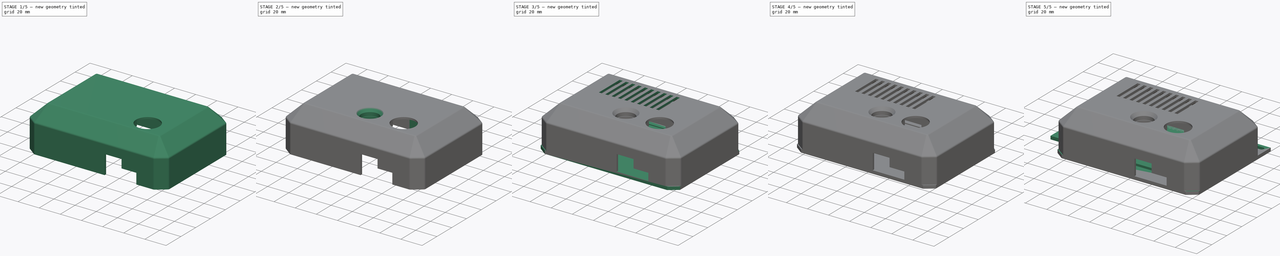
[diagram: build sequence overview — one tinted view per stage of 5, left to right]
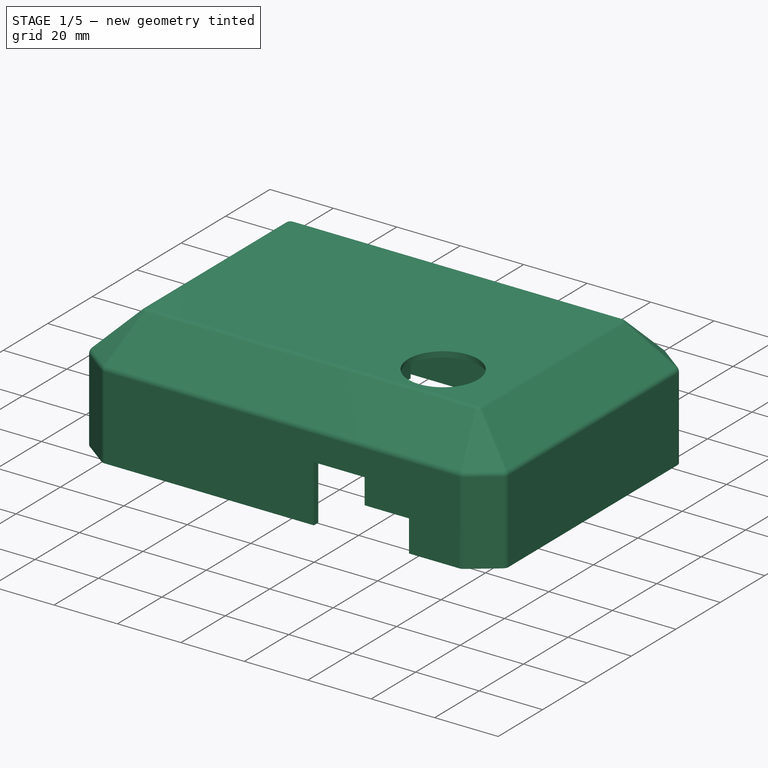
[diagram: stage 1 of 5 — iso view after this stage's code; geometry added in this stage tinted green]
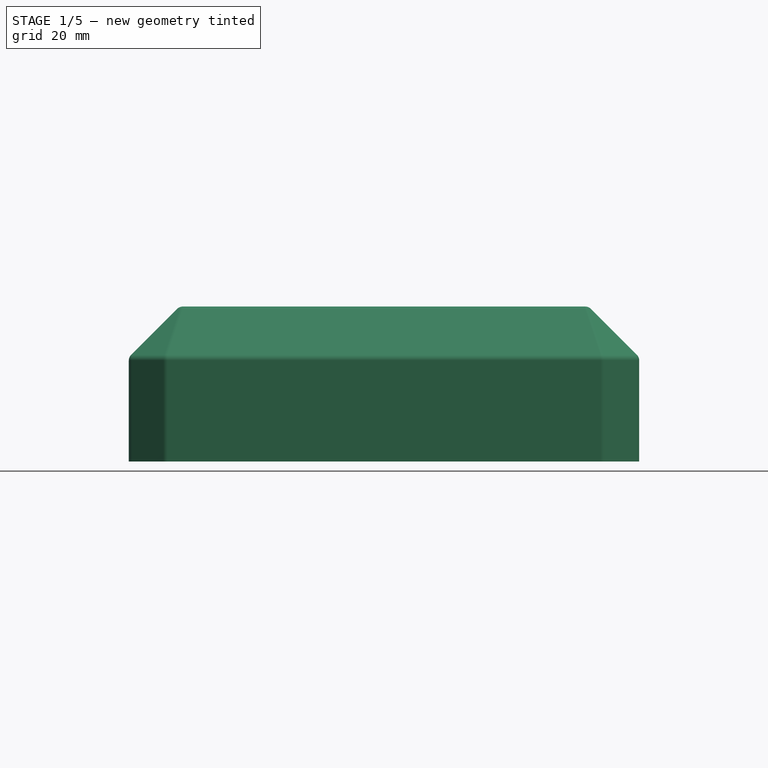
[diagram: stage 1 of 5 — front view after this stage's code; geometry added in this stage tinted green]
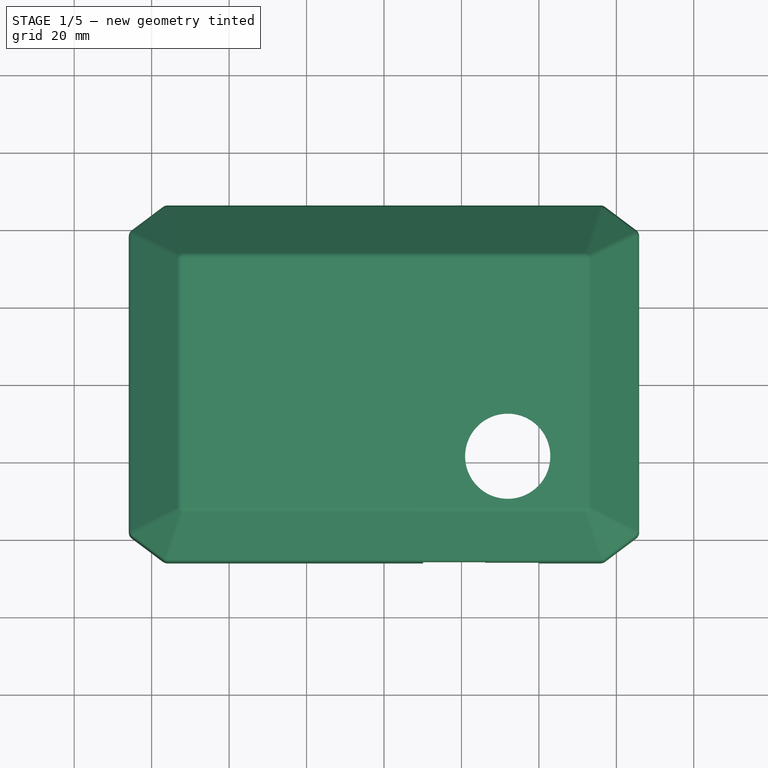
[diagram: stage 1 of 5 — top view after this stage's code; geometry added in this stage tinted green]
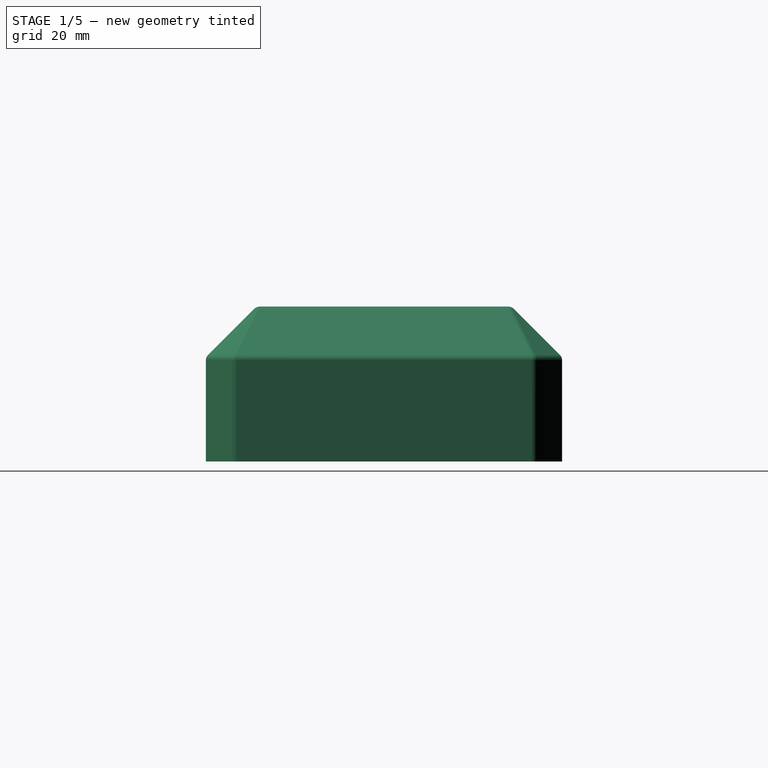
[diagram: stage 1 of 5 — right view after this stage's code; geometry added in this stage tinted green]
FCSTD DOCUMENT  (FreeCAD 0.18.4R)
Label: VICS_PARTS_CAD
License: All rights reserved
LicenseURL: http://en.wikipedia.org/wiki/All_rights_reserved
objects: Sketcher::SketchObject×37, PartDesign::Pocket×21, PartDesign::Pad×18, PartDesign::Body×5, PartDesign::Fillet×4, PartDesign::Chamfer×4, PartDesign::Boolean×2, PartDesign::AdditiveCone×1, PartDesign::Thickness×1
note: 133 computed .brp shape members not serialized (recipe doc carries the construction recipe); baked Part::Feature solids carry a one-line shape summary decoded from their .brp

FEATURE [PartDesign::Body] Body001
  Group = -> [Cone,Pad010,Pad009,Sketch006,Pad011]
  Origin = -> Origin001
  Placement = pos=(0,-19,37) rot=(0,0,1;0rad)
  Tip = -> Pad011
FEATURE [Sketcher::SketchObject] Sketch011
  MapMode = 5
  Placement = pos=(-63.9,0,0) rot=(0.57735,0.57735,0.57735;2.0944rad)
  sketch-geometry (4):
    g0: LineSegment StartX=-4 StartY=0 StartZ=0 EndX=4 EndY=0 EndZ=0
    g1: LineSegment StartX=4 StartY=0 StartZ=0 EndX=4 EndY=26.1 EndZ=0
    g2: LineSegment StartX=4 StartY=26.1 StartZ=0 EndX=-4 EndY=26.1 EndZ=0
    g3: LineSegment StartX=-4 StartY=26.1 StartZ=0 EndX=-4 EndY=0 EndZ=0
  constraints (11):
    c: Coincident(g0,g1)
    c: Coincident(g1,g2)
    c: Coincident(g2,g3)
    c: Coincident(g3,g0)
    c: Horizontal(g2)
    c: Vertical(g1)
    c: Vertical(g3)
    c: PointOnObject(g0,g-1)
    c: Symmetric(g0,g0,g-2)
    c: DistanceX(g2,g2) = 8
    c: DistanceY(g3,g3) = 26.1
FEATURE [Sketcher::SketchObject] Sketch038
  MapMode = 5
  Support = -> [XY_Plane004]
  sketch-geometry (8):
    g0: LineSegment StartX=-63.9 StartY=38 StartZ=0 EndX=-55.9 EndY=44 EndZ=0
    g1: LineSegment StartX=-55.9 StartY=44 StartZ=0 EndX=55.9 EndY=44 EndZ=0
    g2: LineSegment StartX=55.9 StartY=44 StartZ=0 EndX=63.9 EndY=38 EndZ=0
    g3: LineSegment StartX=63.9 StartY=38 StartZ=0 EndX=63.9 EndY=-38 EndZ=0
    g4: LineSegment StartX=63.9 StartY=-38 StartZ=0 EndX=55.9 EndY=-44 EndZ=0
    g5: LineSegment StartX=55.9 StartY=-44 StartZ=0 EndX=-55.9 EndY=-44 EndZ=0
    g6: LineSegment StartX=-55.9 StartY=-44 StartZ=0 EndX=-63.9 EndY=-38 EndZ=0
    g7: LineSegment StartX=-63.9 StartY=-38 StartZ=0 EndX=-63.9 EndY=38 EndZ=0
  constraints (19):
    c: Coincident(g0,g1)
    c: Coincident(g1,g2)
    c: Coincident(g2,g3)
    c: Vertical(g3)
    c: Coincident(g3,g4)
    c: Coincident(g4,g5)
    c: Coincident(g5,g6)
    c: Coincident(g6,g7)
    c: Coincident(g7,g0)
    c: DistanceY(g5,g0) = 88
    c: DistanceX(g6,g3) = 127.8
    c: Symmetric(g6,g3,g-2)
    c: DistanceY(g0,g0) = 6
    c: DistanceY(g4,g3) = 6
    c: Symmetric(g0,g1,g-2)
    c: Symmetric(g0,g2,g-2)
    c: Symmetric(g5,g4,g-2)
    c: DistanceX(g0,g0) = 8
    c: Symmetric(g1,g4,g-1)
FEATURE [PartDesign::Pad] Pad007
  Length = 38
  Length2 = 100
  Profile = -> Sketch038
  Refine = true
  Type = 0
FEATURE [PartDesign::Chamfer] Chamfer003
  Base = -> Pad007 [Edge13,Edge10,Edge7,Edge4,Edge24,Edge22,Edge19,Edge16]
  BaseFeature = -> Pad007
  Size = 11.9
FEATURE [PartDesign::Thickness] Thickness
  Base = -> Chamfer003 [Face4]
  BaseFeature = -> Chamfer003
  Join = 0
  Mode = 0
  Value = 2
FEATURE [Sketcher::SketchObject] Sketch001
  ExternalGeometry = -> [Thickness]
  MapMode = 5
  Placement = pos=(2.8e-15,-46,0) rot=(1,0,0;1.5708rad)
  Support = -> [Thickness]
  sketch-geometry (6):
    g0: LineSegment StartX=10.1 StartY=0 StartZ=0 EndX=10.1 EndY=18 EndZ=0
    g1: LineSegment StartX=10.1 StartY=18 StartZ=0 EndX=26.1 EndY=18 EndZ=0
    g2: LineSegment StartX=26.1 StartY=18 StartZ=0 EndX=26.1 EndY=10 EndZ=0
    g3: LineSegment StartX=26.1 StartY=10 StartZ=0 EndX=40.1 EndY=10 EndZ=0
    g4: LineSegment StartX=40.1 StartY=10 StartZ=0 EndX=40.1 EndY=0 EndZ=0
    g5: LineSegment StartX=10.1 StartY=0 StartZ=0 EndX=40.1 EndY=0 EndZ=0
  constraints (18):
    c: PointOnObject(g0,g-1)
    c: Vertical(g0)
    c: Coincident(g0,g1)
    c: Horizontal(g1)
    c: Coincident(g1,g2)
    c: Vertical(g2)
    c: Coincident(g2,g3)
    c: Horizontal(g3)
    c: Coincident(g3,g4)
    c: Vertical(g4)
    c: DistanceX(g-3,g0) = 76
    c: DistanceY(g0,g0) = 18
    c: DistanceX(g1,g1) = 16
    c: DistanceX(g3,g3) = 14
    c: DistanceY(g4,g4) = 10
    c: PointOnObject(g4,g-1)
    c: Coincident(g5,g0)
    c: Coincident(g5,g4)
FEATURE [PartDesign::Pocket] Pocket015
  BaseFeature = -> Thickness
  Length = 2
  Length2 = 100
  Profile = -> Sketch001
  Refine = true
  Type = 0
FEATURE [Sketcher::SketchObject] Sketch002
  ExternalGeometry = -> [Pocket015]
  MapMode = 5
  Placement = pos=(0,46,0) rot=(0,0.707107,0.707107;3.14159rad)
  Support = -> [Pocket015]
  sketch-geometry (4):
    g0: ArcOfCircle CenterX=-53.9 CenterY=5.5 CenterZ=0 NormalX=0 NormalY=0 NormalZ=1 AngleXU=0 Radius=1.5 StartAngle=1.5708 EndAngle=4.71239
    g1: ArcOfCircle CenterX=-47.9 CenterY=5.5 CenterZ=0 NormalX=0 NormalY=0 NormalZ=1 AngleXU=0 Radius=1.5 StartAngle=4.71239 EndAngle=7.85398
    g2: LineSegment StartX=-53.9 StartY=4 StartZ=0 EndX=-47.9 EndY=4 EndZ=0
    g3: LineSegment StartX=-53.9 StartY=7 StartZ=0 EndX=-47.9 EndY=7 EndZ=0
  constraints (10):
    c: Tangent(g0,g3) = 1.5708
    c: Tangent(g0,g2) = -1.5708
    c: Tangent(g2,g1) = -1.5708
    c: Tangent(g3,g1) = 1.5708
    c: Horizontal(g2)
    c: Equal(g0,g1)
    c: Radius(g0) = 1.5
    c: DistanceX(g3,g3) = 6
    c: DistanceY(g-3,g0) = 4
    c: DistanceX(g-3,g0) = 12
FEATURE [PartDesign::Pocket] Pocket016
  BaseFeature = -> Pocket015
  Length = 2
  Length2 = 100
  Profile = -> Sketch002
  Refine = true
  Type = 0
FEATURE [Sketcher::SketchObject] Sketch003
  ExternalGeometry = -> [Pocket016]
  MapMode = 5
  Placement = pos=(0,0,40) rot=(0,0,1;0rad)
  Support = -> [Pocket016]
  sketch-geometry (1):
    g0: Circle CenterX=31.95 CenterY=-19 CenterZ=0 NormalX=0 NormalY=0 NormalZ=1 AngleXU=0 Radius=11
  constraints (4):
    c: DistanceY(g0,g-3) = 65
    c: Radius(g0) = 11
    c: DistanceX(g-1,g0) = 31.95
    c: DistanceY(g0,g-1) = 19
FEATURE [PartDesign::Pocket] Pocket012
  BaseFeature = -> Pocket016
  Length = 1
  Length2 = 100
  Profile = -> Sketch003
  Refine = true
  Type = 0
FEATURE [Sketcher::SketchObject] Sketch004
  ExternalGeometry = -> [Pocket012]
  MapMode = 5
  Placement = pos=(0,0,38) rot=(1,0,0;3.14159rad)
  Support = -> [Pocket012]
  sketch-geometry (1):
    g0: Circle CenterX=31.95 CenterY=19 CenterZ=0 NormalX=0 NormalY=0 NormalZ=1 AngleXU=0 Radius=11.5
  constraints (3):
    c: Radius(g0) = 11.5
    c: DistanceX(g-1,g0) = 31.95
    c: DistanceY(g-1,g0) = 19
FEATURE [PartDesign::Pocket] Pocket013
  BaseFeature = -> Pocket012
  Length = 1
  Length2 = 100
  Profile = -> Sketch004
  Refine = true
  Type = 0
FEATURE [Sketcher::SketchObject] Sketch005
  ExternalGeometry = -> [Pocket013]
  MapMode = 5
  Placement = pos=(0,0,40) rot=(0,0,1;0rad)
  Support = -> [Pocket013]
  sketch-geometry (4):
    g0: LineSegment StartX=-13.5 StartY=-7.28285 StartZ=0 EndX=13.5 EndY=-7.28285 EndZ=0
    g1: LineSegment StartX=13.5 StartY=-7.28285 StartZ=0 EndX=13.5 EndY=-31.2829 EndZ=0
    g2: LineSegment StartX=13.5 StartY=-31.2829 StartZ=0 EndX=-13.5 EndY=-31.2829 EndZ=0
    g3: LineSegment StartX=-13.5 StartY=-31.2829 StartZ=0 EndX=-13.5 EndY=-7.28285 EndZ=0
  constraints (11):
    c: Coincident(g0,g1)
    c: Coincident(g1,g2)
    c: Coincident(g2,g3)
    c: Coincident(g3,g0)
    c: Horizontal(g2)
    c: Vertical(g1)
    c: Vertical(g3)
    c: DistanceY(g3,g3) = 24
    c: DistanceX(g2,g2) = 27
    c: Symmetric(g0,g0,g-2)
    c: DistanceY(g0,g-3) = 53.2829
FEATURE [PartDesign::Pad] Pad008
  BaseFeature = -> Pocket013
  Length = 12
  Length2 = 100
  Profile = -> Sketch005
  Refine = true
  Reversed = true
  Type = 0
FEATURE [Sketcher::SketchObject] Sketch007
  MapMode = 5
  Placement = pos=(0,0,28) rot=(1,0,0;3.14159rad)
  Support = -> [Pad008]
  sketch-geometry (1):
    g0: Circle CenterX=0 CenterY=19 CenterZ=0 NormalX=0 NormalY=0 NormalZ=1 AngleXU=0 Radius=4.5
  constraints (3):
    c: PointOnObject(g0,g-2)
    c: DistanceY(g-1,g0) = 19
    c: Radius(g0) = 4.5
FEATURE [PartDesign::Pocket] Pocket014
  BaseFeature = -> Pad008
  Length = 2
  Length2 = 100
  Profile = -> Sketch007
  Refine = true
  Type = 0
FEATURE [Sketcher::SketchObject] Sketch008
  ExternalGeometry = -> [Pocket014]
  MapMode = 5
  Placement = pos=(0,0,28) rot=(1,0,0;3.14159rad)
  Support = -> [Pocket014]
  sketch-geometry (4):
    g0: Circle CenterX=-10.5 CenterY=28.2829 CenterZ=0 NormalX=0 NormalY=0 NormalZ=1 AngleXU=0 Radius=3
    g1: Circle CenterX=10.5 CenterY=28.2829 CenterZ=0 NormalX=0 NormalY=0 NormalZ=1 AngleXU=0 Radius=3
    g2: Circle CenterX=-10.5 CenterY=15.7829 CenterZ=0 NormalX=0 NormalY=0 NormalZ=1 AngleXU=0 Radius=3
    g3: Circle CenterX=10.5 CenterY=15.7829 CenterZ=0 NormalX=0 NormalY=0 NormalZ=1 AngleXU=0 Radius=3
  constraints (10):
    c: Radius(g0) = 3
    c: Equal(g0,g2)
    c: Equal(g0,g3)
    c: Equal(g0,g1)
    c: DistanceX(g-4,g0) = 3
    c: Symmetric(g1,g0,g-2)
    c: Symmetric(g3,g2,g-2)
    c: DistanceY(g2,g0) = 12.5
    c: DistanceY(g0,g-4) = 3
    c: DistanceX(g-4,g2) = 3
FEATURE [PartDesign::Pad] Pad012
  BaseFeature = -> Pocket014
  Length = 3
  Length2 = 100
  Profile = -> Sketch008
  Refine = true
  Type = 0
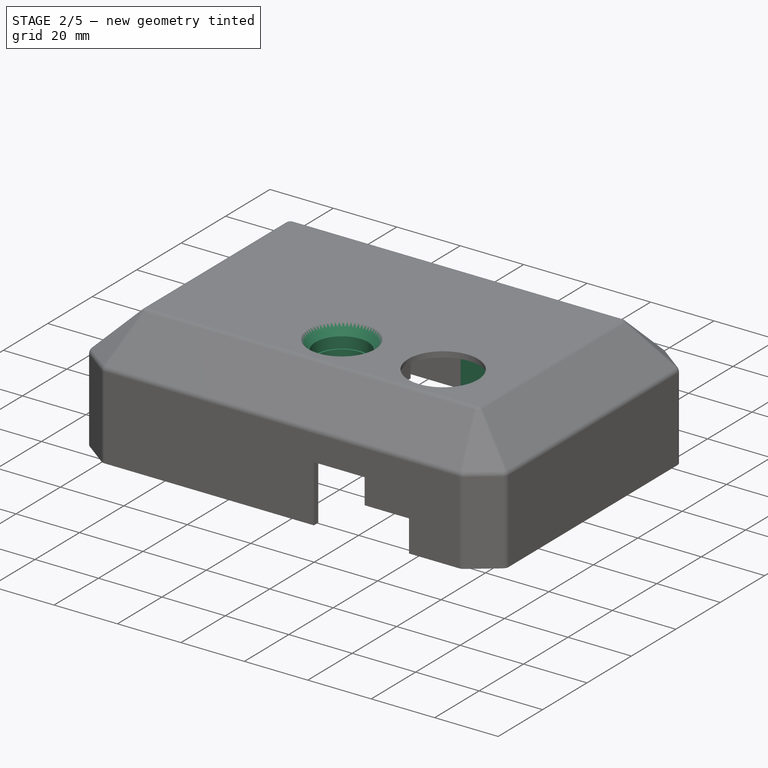
[diagram: stage 2 of 5 — iso view after this stage's code; geometry added in this stage tinted green]
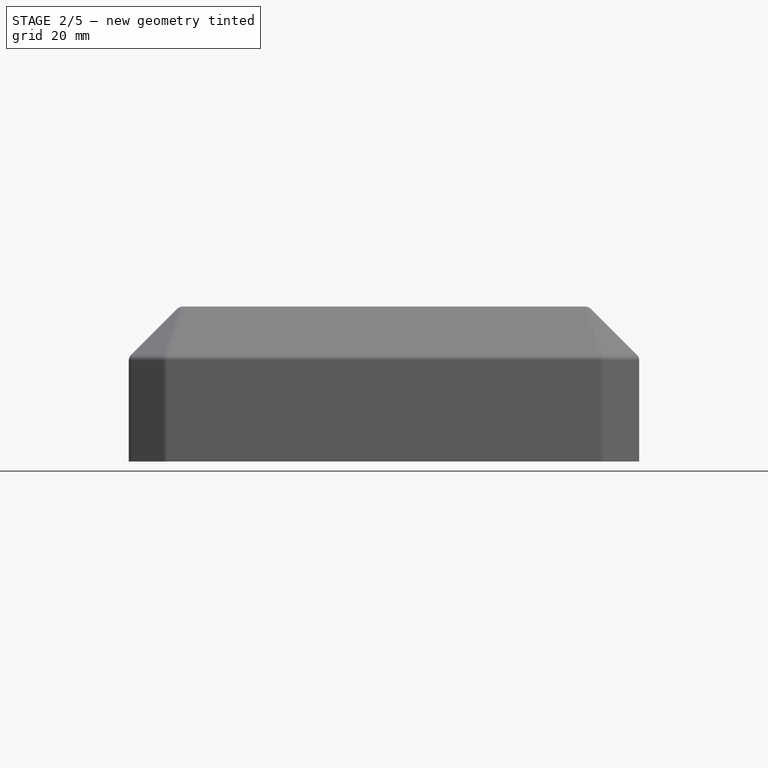
[diagram: stage 2 of 5 — front view after this stage's code; geometry added in this stage tinted green]
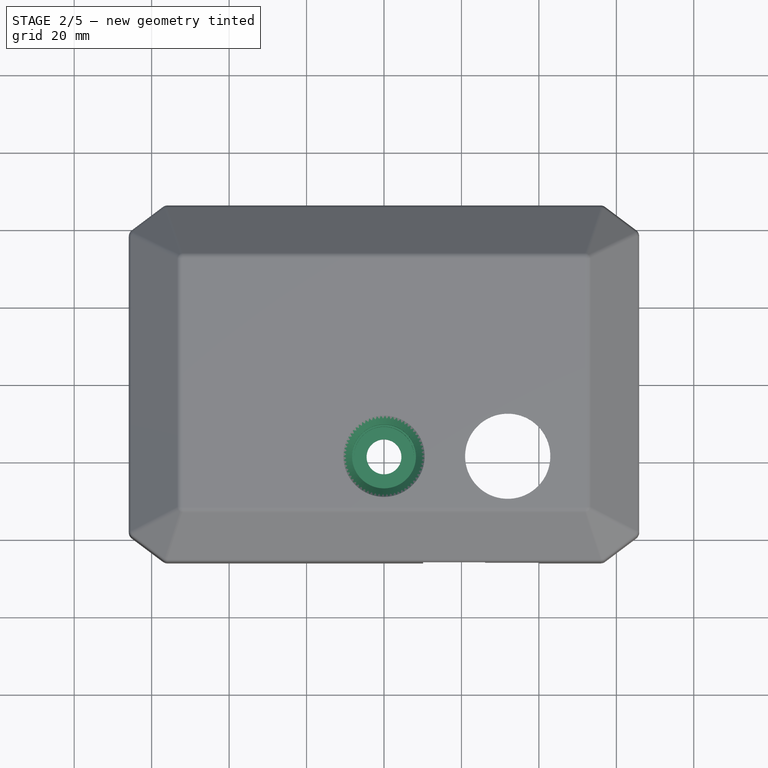
[diagram: stage 2 of 5 — top view after this stage's code; geometry added in this stage tinted green]
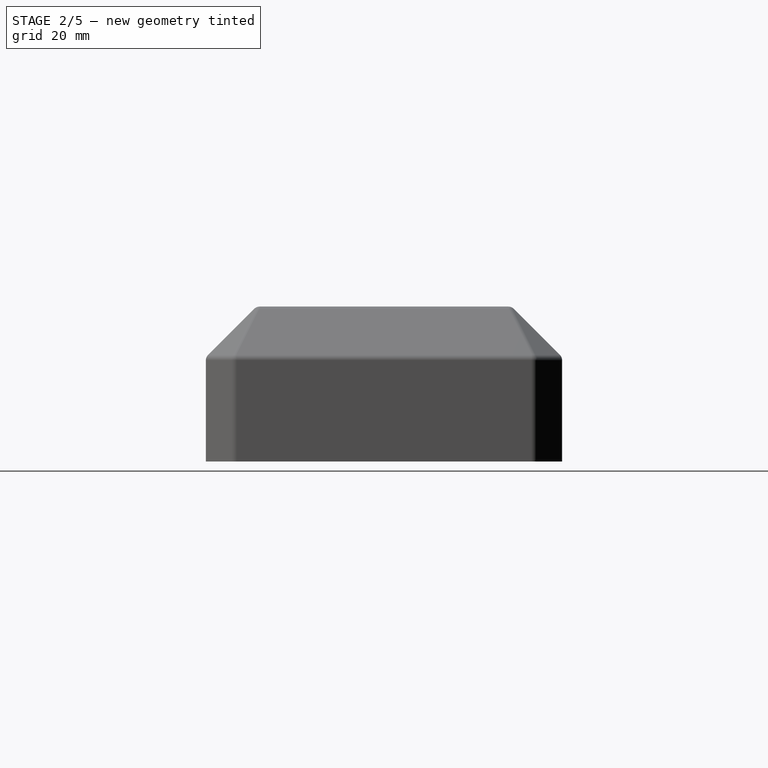
[diagram: stage 2 of 5 — right view after this stage's code; geometry added in this stage tinted green]
FEATURE [PartDesign::Body] Body003  label="Bottom"
  Group = -> [Sketch033,Pad003,Sketch020,Pocket004,Sketch021,Pad004,Sketch022,Pad005,Sketch023,Pocket005,Sketch024,Pocket006,Sketch025,Pocket007,Fillet,Sketch026,Pocket008,Chamfer,Sketch036,Pad006,Sketch034,Pocket009,Sketch035,Pocket011,Sketch037,Pocket010]
  Origin = -> Origin003
  Placement = pos=(0,0,5) rot=(0,0,1;0rad)
  Tip = -> Pocket010
FEATURE [PartDesign::AdditiveCone] Cone
  Angle = 360
  AttacherType = Attacher::AttachEngine3D
  Height = 3
  Radius1 = 8.25
  Radius2 = 10.5
  Refine = true
FEATURE [PartDesign::Pad] Pad010
  BaseFeature = -> Cone
  Length = 3
  Length2 = 100
  Profile = -> Cone [Face2]
  Refine = true
  Type = 0
FEATURE [PartDesign::Pad] Pad009
  BaseFeature = -> Pad010
  Length = 3.5
  Length2 = 100
  Profile = -> Pad010 [Face3]
  Refine = true
  Type = 0
FEATURE [Sketcher::SketchObject] Sketch006
  MapMode = 5
  Placement = pos=(0,0,-3.5) rot=(1,0,0;3.14159rad)
  Support = -> [Pad009]
  sketch-geometry (1):
    g0: Circle CenterX=0 CenterY=0 CenterZ=0 NormalX=0 NormalY=0 NormalZ=1 AngleXU=0 Radius=7.75
  constraints (2):
    c: Coincident(g0,g-1)
    c: Radius(g0) = 7.75
FEATURE [PartDesign::Pad] Pad011
  BaseFeature = -> Pad009
  Length = 3.5
  Length2 = 100
  Profile = -> Sketch006
  Refine = true
  Type = 0
FEATURE [Sketcher::SketchObject] Sketch009
  ExternalGeometry = -> [Pad012]
  MapMode = 5
  Placement = pos=(0,0,38) rot=(1,0,0;3.14159rad)
  Support = -> [Pad012]
  sketch-geometry (4):
    g0: LineSegment StartX=-48.45 StartY=8 StartZ=0 EndX=-19.45 EndY=8 EndZ=0
    g1: LineSegment StartX=-19.45 StartY=8 StartZ=0 EndX=-19.45 EndY=16 EndZ=0
    g2: LineSegment StartX=-19.45 StartY=16 StartZ=0 EndX=-48.45 EndY=16 EndZ=0
    g3: LineSegment StartX=-48.45 StartY=16 StartZ=0 EndX=-48.45 EndY=8 EndZ=0
  constraints (12):
    c: Coincident(g0,g1)
    c: Coincident(g1,g2)
    c: Coincident(g2,g3)
    c: Coincident(g3,g0)
    c: Horizontal(g0)
    c: Horizontal(g2)
    c: Vertical(g1)
    c: Vertical(g3)
    c: DistanceY(g-3,g0) = 54
    c: DistanceY(g1,g1) = 8
    c: DistanceX(g0,g0) = 29
    c: DistanceX(g0,g-1) = 19.45
FEATURE [PartDesign::Pad] Pad013
  BaseFeature = -> Pad012
  Length = 12
  Length2 = 100
  Profile = -> Sketch009
  Refine = true
  Type = 0
FEATURE [PartDesign::Pad] Pad014
  BaseFeature = -> Pad013
  Length = 4.5
  Length2 = 100
  Profile = -> Sketch011
  Refine = true
  Type = 0
FEATURE [Sketcher::SketchObject] Sketch012
  ExternalGeometry = -> [Pad014]
  MapMode = 5
  Placement = pos=(63.9,0,0) rot=(0.57735,-0.57735,-0.57735;2.0944rad)
  Support = -> [Pad014]
  sketch-geometry (4):
    g0: LineSegment StartX=-4 StartY=0 StartZ=0 EndX=4 EndY=0 EndZ=0
    g1: LineSegment StartX=4 StartY=0 StartZ=0 EndX=4 EndY=26.1 EndZ=0
    g2: LineSegment StartX=4 StartY=26.1 StartZ=0 EndX=-4 EndY=26.1 EndZ=0
    g3: LineSegment StartX=-4 StartY=26.1 StartZ=0 EndX=-4 EndY=0 EndZ=0
  constraints (11):
    c: Coincident(g0,g1)
    c: Coincident(g1,g2)
    c: Coincident(g2,g3)
    c: Coincident(g3,g0)
    c: Horizontal(g2)
    c: Vertical(g1)
    c: Vertical(g3)
    c: PointOnObject(g0,g-1)
    c: Symmetric(g0,g0,g-2)
    c: DistanceX(g2,g2) = 8
    c: PointOnObject(g2,g-3)
FEATURE [PartDesign::Pad] Pad015
  BaseFeature = -> Pad014
  Length = 4.5
  Length2 = 100
  Profile = -> Sketch012
  Refine = true
  Type = 0
FEATURE [Sketcher::SketchObject] Sketch013
  ExternalGeometry = -> [Pad015]
  MapMode = 5
  Placement = pos=(0,44,0) rot=(1,0,0;1.5708rad)
  Support = -> [Pad015]
  sketch-geometry (4):
    g0: LineSegment StartX=-4 StartY=0 StartZ=0 EndX=4 EndY=0 EndZ=0
    g1: LineSegment StartX=4 StartY=0 StartZ=0 EndX=4 EndY=26.1 EndZ=0
    g2: LineSegment StartX=4 StartY=26.1 StartZ=0 EndX=-4 EndY=26.1 EndZ=0
    g3: LineSegment StartX=-4 StartY=26.1 StartZ=0 EndX=-4 EndY=0 EndZ=0
  constraints (11):
    c: Coincident(g0,g1)
    c: Coincident(g1,g2)
    c: Coincident(g2,g3)
    c: Coincident(g3,g0)
    c: Horizontal(g2)
    c: Vertical(g1)
    c: Vertical(g3)
    c: PointOnObject(g0,g-1)
    c: Symmetric(g0,g0,g-2)
    c: DistanceX(g2,g2) = 8
    c: PointOnObject(g2,g-3)
FEATURE [PartDesign::Pad] Pad016
  BaseFeature = -> Pad015
  Length = 3.8
  Length2 = 100
  Profile = -> Sketch013
  Refine = true
  Type = 0
FEATURE [Sketcher::SketchObject] Sketch014
  ExternalGeometry = -> [Pad016]
  MapMode = 5
  Placement = pos=(2.6e-15,-44,0) rot=(0,0.707107,0.707107;3.14159rad)
  Support = -> [Pad016]
  sketch-geometry (4):
    g0: LineSegment StartX=-4 StartY=0 StartZ=0 EndX=4 EndY=0 EndZ=0
    g1: LineSegment StartX=4 StartY=0 StartZ=0 EndX=4 EndY=26.1 EndZ=0
    g2: LineSegment StartX=4 StartY=26.1 StartZ=0 EndX=-4 EndY=26.1 EndZ=0
    g3: LineSegment StartX=-4 StartY=26.1 StartZ=0 EndX=-4 EndY=0 EndZ=0
  constraints (11):
    c: Coincident(g0,g1)
    c: Coincident(g1,g2)
    c: Coincident(g2,g3)
    c: Coincident(g3,g0)
    c: Horizontal(g2)
    c: Vertical(g1)
    c: Vertical(g3)
    c: PointOnObject(g0,g-1)
    c: Symmetric(g0,g0,g-2)
    c: DistanceX(g2,g2) = 8
    c: PointOnObject(g2,g-4)
FEATURE [PartDesign::Pad] Pad017
  BaseFeature = -> Pad016
  Length = 3.8
  Length2 = 100
  Profile = -> Sketch014
  Refine = true
  Type = 0
FEATURE [PartDesign::Boolean] Boolean001
  BaseFeature = -> Pad017
  Group = -> [Body001]
  Refine = true
  Type = 1
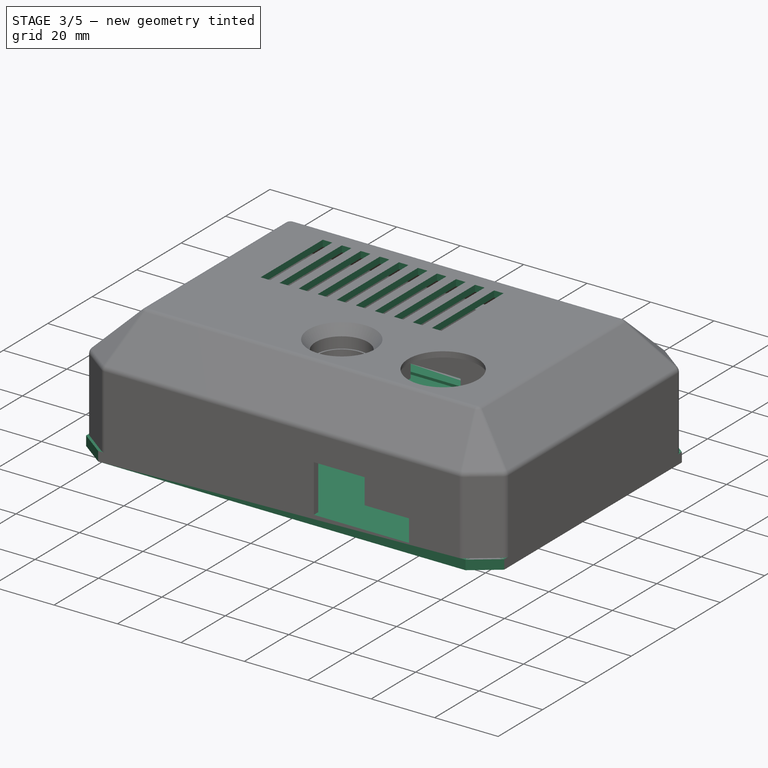
[diagram: stage 3 of 5 — iso view after this stage's code; geometry added in this stage tinted green]
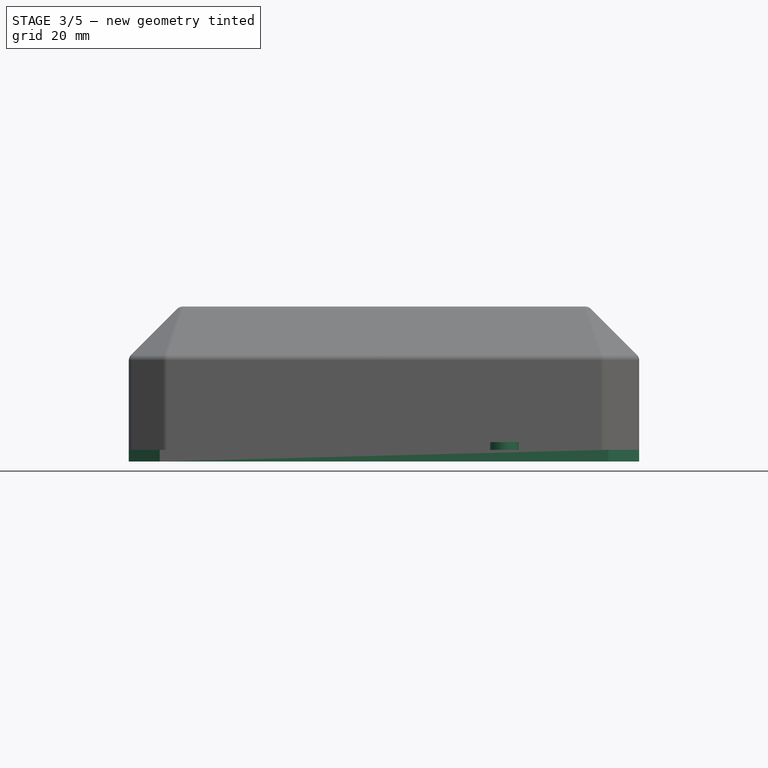
[diagram: stage 3 of 5 — front view after this stage's code; geometry added in this stage tinted green]
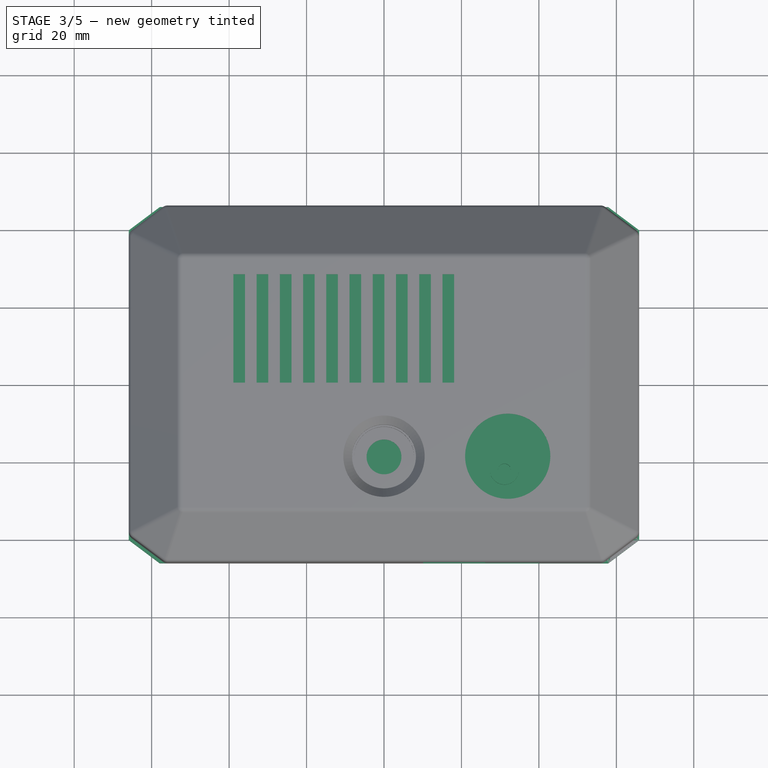
[diagram: stage 3 of 5 — top view after this stage's code; geometry added in this stage tinted green]
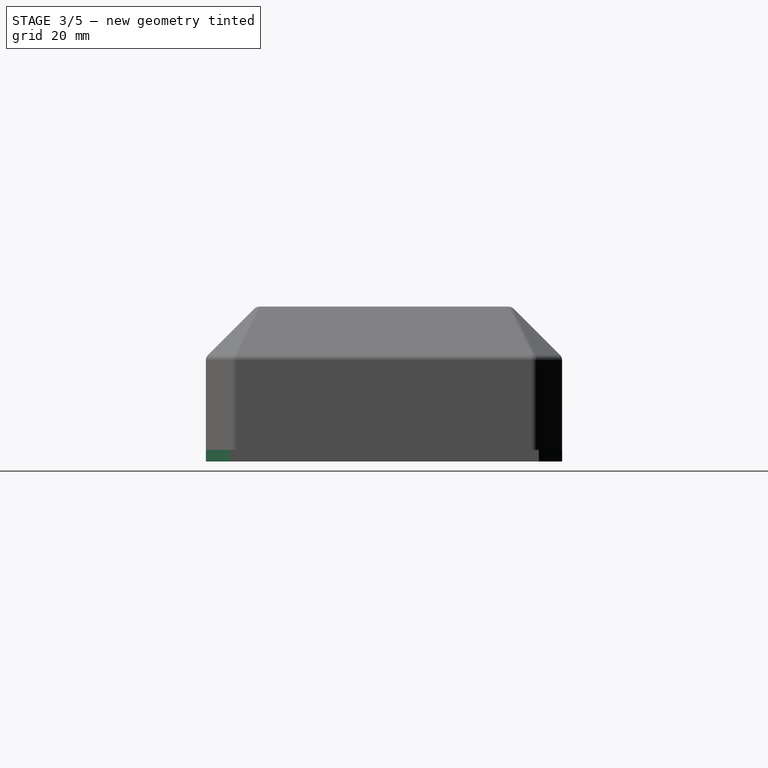
[diagram: stage 3 of 5 — right view after this stage's code; geometry added in this stage tinted green]
FEATURE [PartDesign::Body] Body  label="Chest Mount"
  Group = -> [Sketch,Pad,Sketch027,Pocket,Fillet001,Fillet002,Fillet003,Chamfer001,Sketch028,Pad001,Boolean]
  Origin = -> Origin
  Tip = -> Boolean
FEATURE [Sketcher::SketchObject] Sketch033
  MapMode = 5
  Support = -> [XY_Plane003]
  sketch-geometry (8):
    g0: LineSegment StartX=-65.9 StartY=40 StartZ=0 EndX=-57.9 EndY=46 EndZ=0
    g1: LineSegment StartX=-57.9 StartY=46 StartZ=0 EndX=57.9 EndY=46 EndZ=0
    g2: LineSegment StartX=57.9 StartY=46 StartZ=0 EndX=65.9 EndY=40 EndZ=0
    g3: LineSegment StartX=65.9 StartY=40 StartZ=0 EndX=65.9 EndY=-40 EndZ=0
    g4: LineSegment StartX=65.9 StartY=-40 StartZ=0 EndX=57.9 EndY=-46 EndZ=0
    g5: LineSegment StartX=57.9 StartY=-46 StartZ=0 EndX=-57.9 EndY=-46 EndZ=0
    g6: LineSegment StartX=-57.9 StartY=-46 StartZ=0 EndX=-65.9 EndY=-40 EndZ=0
    g7: LineSegment StartX=-65.9 StartY=-40 StartZ=0 EndX=-65.9 EndY=40 EndZ=0
  constraints (19):
    c: Coincident(g0,g1)
    c: Coincident(g1,g2)
    c: Coincident(g2,g3)
    c: Coincident(g3,g4)
    c: Coincident(g4,g5)
    c: Coincident(g5,g6)
    c: Coincident(g6,g7)
    c: Coincident(g7,g0)
    c: Vertical(g7)
    c: Symmetric(g0,g2,g-2)
    c: Symmetric(g1,g0,g-2)
    c: Symmetric(g6,g3,g-2)
    c: Symmetric(g5,g4,g-2)
    c: DistanceY(g5,g0) = 92
    c: DistanceX(g0,g2) = 131.8
    c: Symmetric(g1,g4,g-1)
    c: DistanceX(g0,g0) = 8
    c: DistanceY(g0,g0) = 6
    c: DistanceY(g5,g6) = 6
FEATURE [PartDesign::Pad] Pad003
  Length = 3
  Length2 = 100
  Profile = -> Sketch033
  Refine = true
  Type = 0
FEATURE [Sketcher::SketchObject] Sketch020
  MapMode = 5
  Placement = pos=(0,0,3) rot=(0,0,1;0rad)
  sketch-geometry (4):
    g0: LineSegment StartX=-58.9 StartY=40 StartZ=0 EndX=41.1 EndY=40 EndZ=0
    g1: LineSegment StartX=41.1 StartY=40 StartZ=0 EndX=41.1 EndY=-40 EndZ=0
    g2: LineSegment StartX=41.1 StartY=-40 StartZ=0 EndX=-58.9 EndY=-40 EndZ=0
    g3: LineSegment StartX=-58.9 StartY=-40 StartZ=0 EndX=-58.9 EndY=40 EndZ=0
  constraints (10):
    c: Coincident(g0,g1)
    c: Coincident(g1,g2)
    c: Coincident(g2,g3)
    c: Coincident(g3,g0)
    c: Horizontal(g0)
    c: Horizontal(g2)
    c: Vertical(g1)
    c: Vertical(g3)
    c: DistanceX(g0,g0) = 100
    c: DistanceY(g3,g3) = 80
FEATURE [PartDesign::Pocket] Pocket004
  BaseFeature = -> Pad003
  Length = 0.8
  Length2 = 100
  Profile = -> Sketch020
  Refine = true
  Type = 0
FEATURE [Sketcher::SketchObject] Sketch021
  ExternalGeometry = -> [Pocket004]
  MapMode = 5
  Placement = pos=(0,0,2.2) rot=(0,0,1;0rad)
  Support = -> [Pocket004]
  sketch-geometry (4):
    g0: Circle CenterX=-54.9 CenterY=36 CenterZ=0 NormalX=0 NormalY=0 NormalZ=1 AngleXU=0 Radius=3.7
    g1: Circle CenterX=31.1 CenterY=36 CenterZ=0 NormalX=0 NormalY=0 NormalZ=1 AngleXU=0 Radius=3.7
    g2: Circle CenterX=31.1 CenterY=-22 CenterZ=0 NormalX=0 NormalY=0 NormalZ=1 AngleXU=0 Radius=3.7
    g3: Circle CenterX=-54.9 CenterY=-22 CenterZ=0 NormalX=0 NormalY=0 NormalZ=1 AngleXU=0 Radius=3.7
  constraints (12):
    c: Radius(g0) = 3.7
    c: Equal(g0,g3)
    c: Equal(g0,g1)
    c: Equal(g0,g2)
    c: DistanceX(g0,g1) = 86
    c: DistanceY(g3,g0) = 58
    c: DistanceY(g2,g1) = 58
    c: DistanceX(g3,g2) = 86
    c: DistanceX(g-4,g0) = 11
    c: DistanceY(g0,g-3) = 10
    c: DistanceY(g1,g0) = 0
    c: DistanceX(g-4,g3) = 11
FEATURE [PartDesign::Pad] Pad004
  BaseFeature = -> Pocket004
  Length = 2.8
  Length2 = 100
  Profile = -> Sketch021
  Refine = true
  Type = 0
FEATURE [Sketcher::SketchObject] Sketch022
  ExternalGeometry = -> [Pad004]
  MapMode = 5
  Placement = pos=(0,0,3) rot=(0,0,1;0rad)
  Support = -> [Pad004]
  sketch-geometry (4):
    g0: Circle CenterX=45.22 CenterY=37.46 CenterZ=0 NormalX=0 NormalY=0 NormalZ=1 AngleXU=0 Radius=3.7
    g1: Circle CenterX=56.65 CenterY=37.46 CenterZ=0 NormalX=0 NormalY=0 NormalZ=1 AngleXU=0 Radius=3.7
    g2: Circle CenterX=45.2 CenterY=-37.46 CenterZ=0 NormalX=0 NormalY=0 NormalZ=1 AngleXU=0 Radius=3.7
    g3: Circle CenterX=57.9 CenterY=-37.46 CenterZ=0 NormalX=0 NormalY=0 NormalZ=1 AngleXU=0 Radius=3.7
  constraints (12):
    c: Radius(g0) = 3.7
    c: Equal(g0,g1)
    c: Equal(g0,g2)
    c: Equal(g0,g3)
    c: DistanceX(g2,g3) = 12.7
    c: DistanceX(g0,g1) = 11.43
    c: DistanceY(g2,g3) = 0
    c: DistanceY(g1,g0) = 0
    c: DistanceY(g-5,g3) = 8.54
    c: DistanceX(g3,g-4) = 8
    c: DistanceX(g1,g-4) = 9.25
    c: DistanceY(g1,g-3) = 8.54
FEATURE [PartDesign::Pad] Pad005
  BaseFeature = -> Pad004
  Length = 2
  Length2 = 100
  Profile = -> Sketch022
  Refine = true
  Type = 0
FEATURE [Sketcher::SketchObject] Sketch023
  ExternalGeometry = -> [Pad005]
  MapMode = 5
  Placement = pos=(0,0,5) rot=(0,0,1;0rad)
  Support = -> [Pad005]
  sketch-geometry (8):
    g0: Circle CenterX=-54.9 CenterY=36 CenterZ=0 NormalX=0 NormalY=0 NormalZ=1 AngleXU=0 Radius=1.7
    g1: Circle CenterX=-54.9 CenterY=-22 CenterZ=0 NormalX=0 NormalY=0 NormalZ=1 AngleXU=0 Radius=1.7
    g2: Circle CenterX=31.1 CenterY=-22 CenterZ=0 NormalX=0 NormalY=0 NormalZ=1 AngleXU=0 Radius=1.7
    g3: Circle CenterX=31.1 CenterY=36 CenterZ=0 NormalX=0 NormalY=0 NormalZ=1 AngleXU=0 Radius=1.7
    g4: Circle CenterX=45.22 CenterY=37.46 CenterZ=0 NormalX=0 NormalY=0 NormalZ=1 AngleXU=0 Radius=1.7
    g5: Circle CenterX=56.65 CenterY=37.46 CenterZ=0 NormalX=0 NormalY=0 NormalZ=1 AngleXU=0 Radius=1.7
    g6: Circle CenterX=45.2 CenterY=-37.46 CenterZ=0 NormalX=0 NormalY=0 NormalZ=1 AngleXU=0 Radius=1.7
    g7: Circle CenterX=57.9 CenterY=-37.46 CenterZ=0 NormalX=0 NormalY=0 NormalZ=1 AngleXU=0 Radius=1.7
  constraints (24):
    c: Radius(g0) = 1.7
    c: Equal(g0,g1)
    c: Equal(g0,g3)
    c: Equal(g0,g2)
    c: Equal(g0,g6)
    c: Equal(g0,g7)
    c: Equal(g0,g4)
    c: Equal(g0,g5)
    c: DistanceY(g0,g-3) = 10
    c: DistanceX(g-4,g0) = 11
    c: DistanceX(g0,g3) = 86
    c: DistanceY(g3,g0) = 0
    c: DistanceX(g-4,g1) = 11
    c: DistanceX(g1,g2) = 86
    c: DistanceY(g2,g1) = 0
    c: DistanceY(g1,g0) = 58
    c: DistanceX(g6,g7) = 12.7
    c: DistanceX(g7,g-5) = 8
    c: DistanceY(g7,g6) = 0
    c: DistanceY(g-6,g7) = 8.54
    c: DistanceX(g4,g5) = 11.43
    c: DistanceY(g5,g-3) = 8.54
    c: DistanceY(g4,g5) = 0
    c: DistanceX(g5,g-5) = 9.25
FEATURE [PartDesign::Pocket] Pocket005
  BaseFeature = -> Pad005
  Length = 4
  Length2 = 100
  Profile = -> Sketch023
  Refine = true
  Type = 0
FEATURE [Sketcher::SketchObject] Sketch024
  ExternalGeometry = -> [Pocket005]
  MapMode = 5
  Placement = pos=(0,0,0) rot=(1,0,0;3.14159rad)
  Support = -> [Pocket005]
  sketch-geometry (4):
    g0: Circle CenterX=0 CenterY=43 CenterZ=0 NormalX=0 NormalY=0 NormalZ=1 AngleXU=0 Radius=1.7
    g1: Circle CenterX=-62.65 CenterY=0 CenterZ=0 NormalX=0 NormalY=0 NormalZ=1 AngleXU=0 Radius=1.7
    g2: Circle CenterX=62.65 CenterY=0 CenterZ=0 NormalX=0 NormalY=0 NormalZ=1 AngleXU=0 Radius=1.7
    g3: Circle CenterX=0 CenterY=-43 CenterZ=0 NormalX=0 NormalY=0 NormalZ=1 AngleXU=0 Radius=1.7
  constraints (12):
    c: PointOnObject(g0,g-2)
    c: PointOnObject(g1,g-1)
    c: PointOnObject(g2,g-1)
    c: PointOnObject(g3,g-2)
    c: Radius(g1) = 1.7
    c: Equal(g1,g0)
    c: Equal(g1,g2)
    c: Equal(g1,g3)
    c: DistanceY(g0,g-3) = 3
    c: DistanceY(g-5,g3) = 3
    c: DistanceX(g-4,g1) = 3.25
    c: DistanceX(g2,g-6) = 3.25
FEATURE [PartDesign::Pocket] Pocket006
  BaseFeature = -> Pocket005
  Length = 3
  Length2 = 100
  Profile = -> Sketch024
  Refine = true
  Type = 0
FEATURE [Sketcher::SketchObject] Sketch015
  ExternalGeometry = -> [Boolean001]
  MapMode = 5
  Placement = pos=(0,0,40) rot=(0,0,1;0rad)
  Support = -> [Boolean001]
  sketch-geometry (40):
    g0: LineSegment StartX=-38.9 StartY=28 StartZ=0 EndX=-35.9 EndY=28 EndZ=0
    g1: LineSegment StartX=-35.9 StartY=28 StartZ=0 EndX=-35.9 EndY=0 EndZ=0
    g2: LineSegment StartX=-35.9 StartY=0 StartZ=0 EndX=-38.9 EndY=0 EndZ=0
    g3: LineSegment StartX=-38.9 StartY=0 StartZ=0 EndX=-38.9 EndY=28 EndZ=0
    g4: LineSegment StartX=-32.9 StartY=28 StartZ=0 EndX=-29.9 EndY=28 EndZ=0
    g5: LineSegment StartX=-29.9 StartY=28 StartZ=0 EndX=-29.9 EndY=0 EndZ=0
    g6: LineSegment StartX=-29.9 StartY=0 StartZ=0 EndX=-32.9 EndY=0 EndZ=0
    g7: LineSegment StartX=-32.9 StartY=0 StartZ=0 EndX=-32.9 EndY=28 EndZ=0
    g8: LineSegment StartX=-26.9 StartY=28 StartZ=0 EndX=-23.9 EndY=28 EndZ=0
    g9: LineSegment StartX=-23.9 StartY=28 StartZ=0 EndX=-23.9 EndY=0 EndZ=0
    g10: LineSegment StartX=-23.9 StartY=0 StartZ=0 EndX=-26.9 EndY=0 EndZ=0
    g11: LineSegment StartX=-26.9 StartY=0 StartZ=0 EndX=-26.9 EndY=28 EndZ=0
    g12: LineSegment StartX=-20.9 StartY=28 StartZ=0 EndX=-17.9 EndY=28 EndZ=0
    g13: LineSegment StartX=-17.9 StartY=28 StartZ=0 EndX=-17.9 EndY=0 EndZ=0
    g14: LineSegment StartX=-17.9 StartY=0 StartZ=0 EndX=-20.9 EndY=0 EndZ=0
    g15: LineSegment StartX=-20.9 StartY=0 StartZ=0 EndX=-20.9 EndY=28 EndZ=0
    g16: LineSegment StartX=-14.9 StartY=28 StartZ=0 EndX=-11.9 EndY=28 EndZ=0
    g17: LineSegment StartX=-11.9 StartY=28 StartZ=0 EndX=-11.9 EndY=0 EndZ=0
    g18: LineSegment StartX=-11.9 StartY=0 StartZ=0 EndX=-14.9 EndY=0 EndZ=0
    g19: LineSegment StartX=-14.9 StartY=0 StartZ=0 EndX=-14.9 EndY=28 EndZ=0
    g20: LineSegment StartX=-8.9 StartY=28 StartZ=0 EndX=-5.9 EndY=28 EndZ=0
    g21: LineSegment StartX=-5.9 StartY=28 StartZ=0 EndX=-5.9 EndY=0 EndZ=0
    g22: LineSegment StartX=-5.9 StartY=0 StartZ=0 EndX=-8.9 EndY=0 EndZ=0
    g23: LineSegment StartX=-8.9 StartY=0 StartZ=0 EndX=-8.9 EndY=28 EndZ=0
    g24: LineSegment StartX=-2.9 StartY=28 StartZ=0 EndX=0.1 EndY=28 EndZ=0
    g25: LineSegment StartX=0.1 StartY=28 StartZ=0 EndX=0.1 EndY=0 EndZ=0
    g26: LineSegment StartX=0.1 StartY=0 StartZ=0 EndX=-2.9 EndY=0 EndZ=0
    g27: LineSegment StartX=-2.9 StartY=0 StartZ=0 EndX=-2.9 EndY=28 EndZ=0
    g28: LineSegment StartX=3.1 StartY=28 StartZ=0 EndX=6.1 EndY=28 EndZ=0
    g29: LineSegment StartX=6.1 StartY=28 StartZ=0 EndX=6.1 EndY=0 EndZ=0
    g30: LineSegment StartX=6.1 StartY=0 StartZ=0 EndX=3.1 EndY=0 EndZ=0
    g31: LineSegment StartX=3.1 StartY=0 StartZ=0 EndX=3.1 EndY=28 EndZ=0
    g32: LineSegment StartX=9.1 StartY=28 StartZ=0 EndX=12.1 EndY=28 EndZ=0
    g33: LineSegment StartX=12.1 StartY=28 StartZ=0 EndX=12.1 EndY=0 EndZ=0
    g34: LineSegment StartX=12.1 StartY=0 StartZ=0 EndX=9.1 EndY=0 EndZ=0
    g35: LineSegment StartX=9.1 StartY=0 StartZ=0 EndX=9.1 EndY=28 EndZ=0
    g36: LineSegment StartX=15.1 StartY=28 StartZ=0 EndX=18.1 EndY=28 EndZ=0
    g37: LineSegment StartX=18.1 StartY=28 StartZ=0 EndX=18.1 EndY=0 EndZ=0
    g38: LineSegment StartX=18.1 StartY=0 StartZ=0 EndX=15.1 EndY=0 EndZ=0
    g39: LineSegment StartX=15.1 StartY=0 StartZ=0 EndX=15.1 EndY=28 EndZ=0
  constraints (120):
    c: Coincident(g0,g1)
    c: Coincident(g1,g2)
    c: Coincident(g2,g3)
    c: Coincident(g3,g0)
    c: Horizontal(g0)
    c: Horizontal(g2)
    c: Vertical(g1)
    c: Vertical(g3)
    c: PointOnObject(g1,g-1)
    c: Coincident(g4,g5)
    c: Coincident(g5,g6)
    c: Coincident(g6,g7)
    c: Coincident(g7,g4)
    c: Horizontal(g4)
    c: Horizontal(g6)
    c: Vertical(g5)
    c: Vertical(g7)
    c: PointOnObject(g5,g-1)
    c: Coincident(g8,g9)
    c: Coincident(g9,g10)
    c: Coincident(g10,g11)
    c: Coincident(g11,g8)
    c: Horizontal(g8)
    c: Horizontal(g10)
    c: Vertical(g9)
    c: Vertical(g11)
    c: PointOnObject(g9,g-1)
    c: Coincident(g12,g13)
    c: Coincident(g13,g14)
    c: Coincident(g14,g15)
    c: Coincident(g15,g12)
    c: Horizontal(g12)
    c: Horizontal(g14)
    c: Vertical(g13)
    c: Vertical(g15)
    c: PointOnObject(g13,g-1)
    c: Coincident(g16,g17)
    c: Coincident(g17,g18)
    c: Coincident(g18,g19)
    c: Coincident(g19,g16)
    c: Horizontal(g16)
    c: Horizontal(g18)
    c: Vertical(g17)
    c: Vertical(g19)
    c: PointOnObject(g17,g-1)
    c: Coincident(g20,g21)
    c: Coincident(g21,g22)
    c: Coincident(g22,g23)
    c: Coincident(g23,g20)
    c: Horizontal(g20)
    c: Horizontal(g22)
    c: Vertical(g21)
    c: Vertical(g23)
    c: PointOnObject(g21,g-1)
    c: Coincident(g24,g25)
    c: Coincident(g25,g26)
    c: Coincident(g26,g27)
    c: Coincident(g27,g24)
    c: Horizontal(g24)
    c: Horizontal(g26)
    c: Vertical(g25)
    c: Vertical(g27)
    c: PointOnObject(g25,g-1)
    c: Coincident(g28,g29)
    c: Coincident(g29,g30)
    c: Coincident(g30,g31)
    c: Coincident(g31,g28)
    c: Horizontal(g28)
    c: Horizontal(g30)
    c: Vertical(g29)
    c: Vertical(g31)
    c: PointOnObject(g29,g-1)
    c: Coincident(g32,g33)
    c: Coincident(g33,g34)
    c: Coincident(g34,g35)
    c: Coincident(g35,g32)
    c: Horizontal(g32)
    c: Horizontal(g34)
    c: Vertical(g33)
    c: Vertical(g35)
    c: PointOnObject(g33,g-1)
    c: Coincident(g36,g37)
    c: Coincident(g37,g38)
    c: Coincident(g38,g39)
    c: Coincident(g39,g36)
    c: Horizontal(g36)
    c: Horizontal(g38)
    c: Vertical(g37)
    c: Vertical(g39)
    c: PointOnObject(g37,g-1)
    c: DistanceX(g0,g0) = 3
    c: Equal(g16,g12)
    c: Equal(g12,g8)
    c: Equal(g8,g4)
    c: Equal(g4,g0)
    c: Equal(g0,g20)
    c: Equal(g20,g24)
    c: Equal(g24,g28)
    c: Equal(g28,g32)
    c: Equal(g32,g36)
    c: DistanceX(g0,g4) = 3
    c: DistanceX(g4,g8) = 3
    c: DistanceX(g8,g12) = 3
    c: DistanceX(g12,g16) = 3
    c: DistanceX(g16,g20) = 3
    c: DistanceX(g20,g24) = 3
    c: DistanceX(g24,g28) = 3
    c: DistanceX(g28,g32) = 3
    c: DistanceX(g32,g36) = 3
    c: DistanceX(g-3,g0) = 27
    c: DistanceY(g3,g3) = 28
    c: Equal(g3,g7)
    c: Equal(g7,g11)
    c: Equal(g11,g15)
    c: Equal(g15,g19)
    c: Equal(g19,g23)
    c: Equal(g23,g27)
    c: Equal(g27,g31)
    c: Equal(g31,g35)
    c: Equal(g35,g39)
FEATURE [PartDesign::Pocket] Pocket017
  BaseFeature = -> Boolean001
  Length = 2
  Length2 = 100
  Profile = -> Sketch015
  Refine = true
  Type = 0
FEATURE [Sketcher::SketchObject] Sketch018
  ExternalGeometry = -> [Pad014]
  MapMode = 5
  Placement = pos=(0,-8,0) rot=(0,0.707107,0.707107;3.14159rad)
  Support = -> [Pad014]
  sketch-geometry (2):
    g0: Circle CenterX=23.49 CenterY=35.46 CenterZ=0 NormalX=0 NormalY=0 NormalZ=1 AngleXU=0 Radius=1.7
    g1: Circle CenterX=44.41 CenterY=35.46 CenterZ=0 NormalX=0 NormalY=0 NormalZ=1 AngleXU=0 Radius=1.7
  constraints (7):
    c: Radius(g0) = 1.7
    c: Equal(g0,g1)
    c: DistanceY(g1,g-5) = 2.54
    c: DistanceY(g0,g-4) = 2.54
    c: DistanceX(g0,g1) = 20.92
    c: DistanceX(g-6,g-6) = 29
    c: DistanceX(g-4,g0) = 4.04
FEATURE [PartDesign::Pocket] Pocket018
  BaseFeature = -> Pocket017
  Length = 6
  Length2 = 100
  Profile = -> Sketch018
  Refine = true
  Type = 0
FEATURE [Sketcher::SketchObject] Sketch019
  ExternalGeometry = -> [Pocket018]
  MapMode = 5
  Placement = pos=(0,0,0) rot=(1,0,0;3.14159rad)
  Support = -> [Pocket018]
  sketch-geometry (4):
    g0: Circle CenterX=0 CenterY=43 CenterZ=0 NormalX=0 NormalY=0 NormalZ=1 AngleXU=0 Radius=1.7
    g1: Circle CenterX=-62.65 CenterY=0 CenterZ=0 NormalX=0 NormalY=0 NormalZ=1 AngleXU=0 Radius=1.7
    g2: Circle CenterX=62.65 CenterY=0 CenterZ=0 NormalX=0 NormalY=0 NormalZ=1 AngleXU=0 Radius=1.7
    g3: Circle CenterX=0 CenterY=-43 CenterZ=0 NormalX=0 NormalY=0 NormalZ=1 AngleXU=0 Radius=1.7
  constraints (12):
    c: PointOnObject(g0,g-2)
    c: PointOnObject(g1,g-1)
    c: PointOnObject(g2,g-1)
    c: PointOnObject(g3,g-2)
    c: Radius(g3) = 1.7
    c: Equal(g3,g1)
    c: Equal(g3,g0)
    c: Equal(g3,g2)
    c: DistanceX(g-4,g1) = 3.25
    c: DistanceY(g0,g-3) = 3
    c: DistanceX(g2,g-5) = 3.25
    c: DistanceY(g-6,g3) = 3
FEATURE [PartDesign::Pocket] Pocket019
  BaseFeature = -> Pocket018
  Length = 15
  Length2 = 100
  Profile = -> Sketch019
  Refine = true
  Type = 0
FEATURE [Sketcher::SketchObject] Sketch039
  ExternalGeometry = -> [Pocket019]
  MapMode = 5
  Placement = pos=(0,0,25) rot=(1,0,0;3.14159rad)
  Support = -> [Pocket019]
  sketch-geometry (4):
    g0: Circle CenterX=-10.5 CenterY=28.2829 CenterZ=0 NormalX=0 NormalY=0 NormalZ=1 AngleXU=0 Radius=1.7
    g1: Circle CenterX=-10.5 CenterY=15.7829 CenterZ=0 NormalX=0 NormalY=0 NormalZ=1 AngleXU=0 Radius=1.7
    g2: Circle CenterX=10.5 CenterY=28.2829 CenterZ=0 NormalX=0 NormalY=0 NormalZ=1 AngleXU=0 Radius=1.7
    g3: Circle CenterX=10.5 CenterY=15.7829 CenterZ=0 NormalX=0 NormalY=0 NormalZ=1 AngleXU=0 Radius=1.7
  constraints (12):
    c: Radius(g0) = 1.7
    c: Equal(g0,g2)
    c: Equal(g0,g1)
    c: Equal(g0,g3)
    c: DistanceY(g1,g0) = 12.5
    c: DistanceX(g0,g2) = 21
    c: DistanceY(g0,g-4) = 3
    c: DistanceX(g-4,g0) = 3
    c: DistanceY(g3,g2) = 12.5
    c: DistanceY(g2,g-5) = 3
    c: DistanceX(g1,g3) = 21
    c: DistanceX(g-4,g1) = 3
FEATURE [PartDesign::Pocket] Pocket020
  BaseFeature = -> Pocket019
  Length = 6
  Length2 = 100
  Profile = -> Sketch039
  Refine = true
  Type = 0
FEATURE [PartDesign::Chamfer] Chamfer002
  Base = -> Pocket020 [Edge459,Edge456,Edge457,Edge455,Edge268,Edge267,Edge56,Edge57,Edge55,Edge58]
  BaseFeature = -> Pocket020
  Size = 0.5
FEATURE [PartDesign::Body] Body004  label="Top"
  Group = -> [Sketch038,Pad007,Chamfer003,Thickness,Sketch001,Pocket015,Sketch002,Pocket016,Sketch003,Pocket012,Sketch004,Pocket013,Sketch005,Pad008,Sketch007,Pocket014,Sketch008,Pad012,Sketch009,Pad013,Sketch011,Pad014,Sketch012,Pad015,Sketch013,Pad016,Sketch014,Pad017,Boolean001,Sketch015,Pocket017,Sketch018,Pocket018,Sketch019,Pocket019,Sketch039,Pocket020,Chamfer002]
  Origin = -> Origin004
  Placement = pos=(0,0,8) rot=(0,0,1;0rad)
  Tip = -> Chamfer002
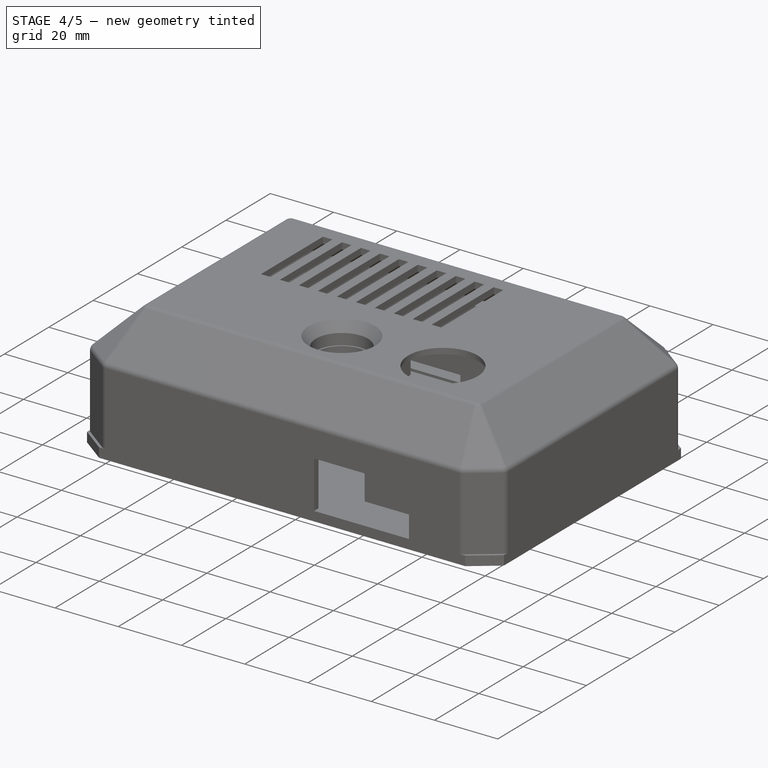
[diagram: stage 4 of 5 — iso view after this stage's code; geometry added in this stage tinted green]
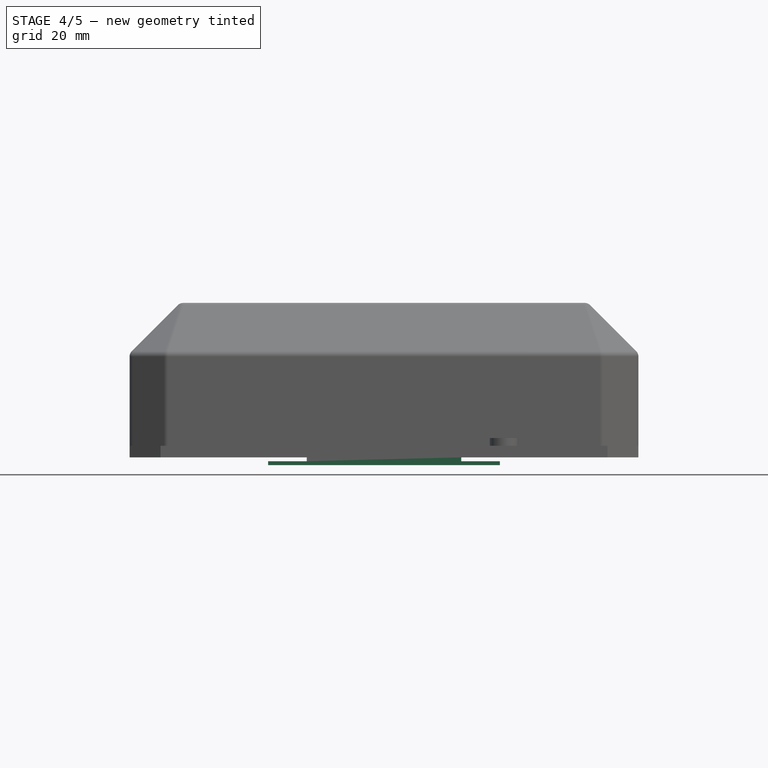
[diagram: stage 4 of 5 — front view after this stage's code; geometry added in this stage tinted green]
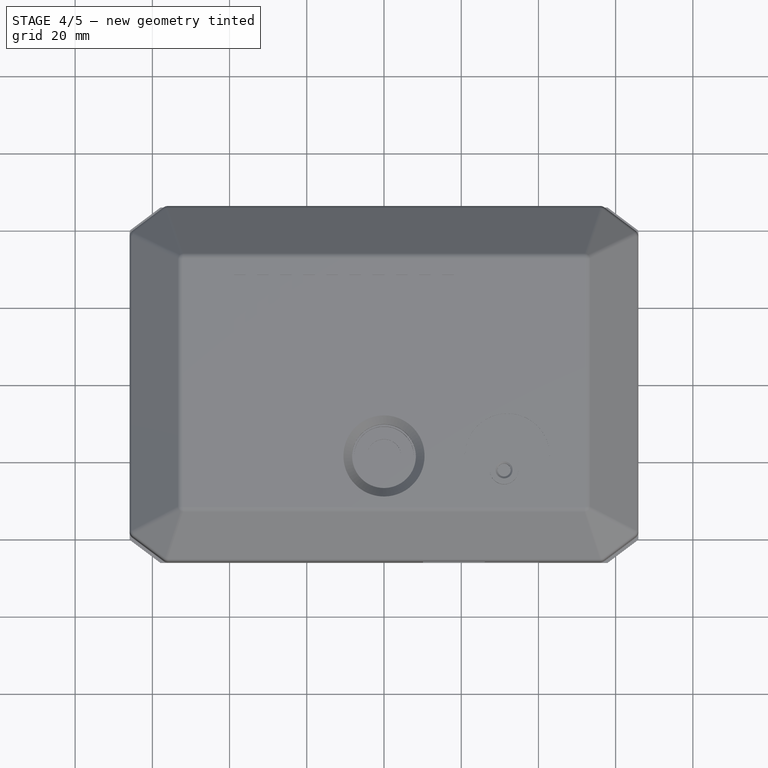
[diagram: stage 4 of 5 — top view after this stage's code; geometry added in this stage tinted green]
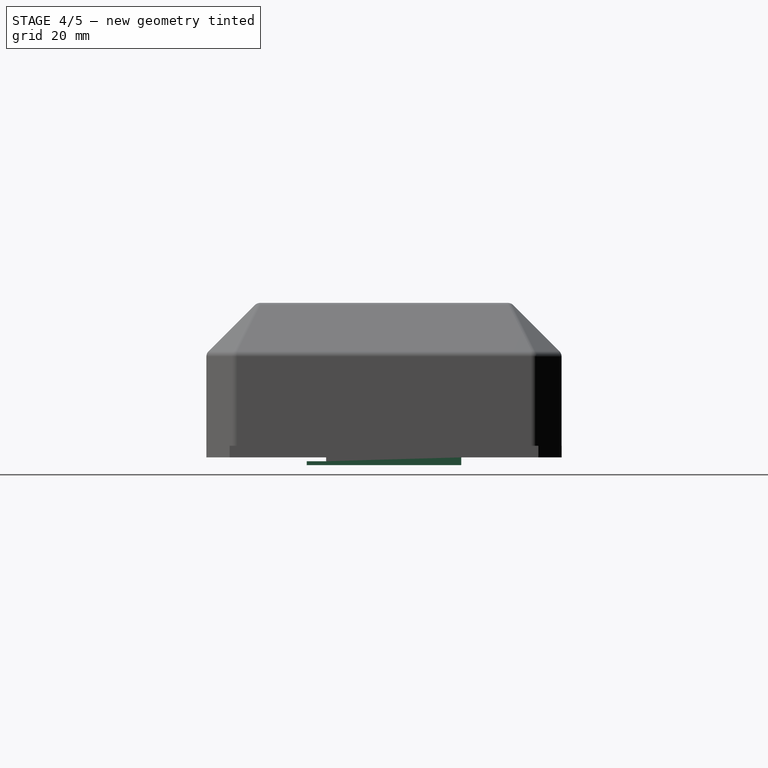
[diagram: stage 4 of 5 — right view after this stage's code; geometry added in this stage tinted green]
FEATURE [Sketcher::SketchObject] Sketch029
  MapMode = 5
  Support = -> [XY_Plane002]
  sketch-geometry (4):
    g0: LineSegment StartX=-31 StartY=20 StartZ=0 EndX=31 EndY=20 EndZ=0
    g1: LineSegment StartX=31 StartY=20 StartZ=0 EndX=31 EndY=-20 EndZ=0
    g2: LineSegment StartX=31 StartY=-20 StartZ=0 EndX=-31 EndY=-20 EndZ=0
    g3: LineSegment StartX=-31 StartY=-20 StartZ=0 EndX=-31 EndY=20 EndZ=0
  constraints (10):
    c: Coincident(g0,g1)
    c: Coincident(g1,g2)
    c: Coincident(g2,g3)
    c: Coincident(g3,g0)
    c: Horizontal(g2)
    c: Vertical(g3)
    c: Symmetric(g0,g0,g-2)
    c: Symmetric(g1,g0,g-1)
    c: DistanceX(g0,g0) = 62
    c: DistanceY(g1,g1) = 40
FEATURE [PartDesign::Pad] Pad002
  Length = 2
  Length2 = 100
  Profile = -> Sketch029
  Refine = true
  Type = 0
FEATURE [Sketcher::SketchObject] Sketch030
  ExternalGeometry = -> [Pad002]
  MapMode = 5
  Placement = pos=(31,0,0) rot=(0.57735,0.57735,0.57735;2.0944rad)
  Support = -> [Pad002]
  sketch-geometry (4):
    g0: LineSegment StartX=-20 StartY=2 StartZ=0 EndX=20 EndY=2 EndZ=0
    g1: LineSegment StartX=20 StartY=2 StartZ=0 EndX=20 EndY=1 EndZ=0
    g2: LineSegment StartX=20 StartY=1 StartZ=0 EndX=-20 EndY=1 EndZ=0
    g3: LineSegment StartX=-20 StartY=1 StartZ=0 EndX=-20 EndY=2 EndZ=0
  constraints (11):
    c: Coincident(g0,g1)
    c: Coincident(g1,g2)
    c: Coincident(g2,g3)
    c: Coincident(g3,g0)
    c: Horizontal(g0)
    c: Horizontal(g2)
    c: Vertical(g1)
    c: Vertical(g3)
    c: Coincident(g0,g-3)
    c: PointOnObject(g1,g-4)
    c: DistanceY(g3,g3) = 1
FEATURE [PartDesign::Pocket] Pocket001
  BaseFeature = -> Pad002
  Length = 9.5
  Length2 = 100
  Profile = -> Sketch030
  Refine = true
  Type = 0
FEATURE [Sketcher::SketchObject] Sketch025
  ExternalGeometry = -> [Pocket006]
  MapMode = 5
  Placement = pos=(0,0,3) rot=(0,0,1;0rad)
  Support = -> [Pocket006]
  sketch-geometry (4):
    g0: LineSegment StartX=43.4 StartY=8.25 StartZ=0 EndX=49.9 EndY=8.25 EndZ=0
    g1: LineSegment StartX=49.9 StartY=8.25 StartZ=0 EndX=49.9 EndY=-8.25 EndZ=0
    g2: LineSegment StartX=49.9 StartY=-8.25 StartZ=0 EndX=43.4 EndY=-8.25 EndZ=0
    g3: LineSegment StartX=43.4 StartY=-8.25 StartZ=0 EndX=43.4 EndY=8.25 EndZ=0
  constraints (11):
    c: Coincident(g0,g1)
    c: Coincident(g1,g2)
    c: Coincident(g2,g3)
    c: Coincident(g3,g0)
    c: Horizontal(g0)
    c: Horizontal(g2)
    c: Vertical(g3)
    c: Symmetric(g0,g1,g-1)
    c: DistanceY(g1,g1) = 16.5
    c: DistanceX(g0,g0) = 6.5
    c: DistanceX(g1,g-3) = 16
FEATURE [PartDesign::Pocket] Pocket007
  BaseFeature = -> Pocket006
  Length = 3
  Length2 = 100
  Profile = -> Sketch025
  Refine = true
  Type = 0
FEATURE [PartDesign::Fillet] Fillet
  Base = -> Pocket007 [Edge50,Edge51,Edge53,Edge52]
  BaseFeature = -> Pocket007
  Radius = 2
FEATURE [Sketcher::SketchObject] Sketch026
  ExternalGeometry = -> [Fillet]
  MapMode = 5
  Placement = pos=(0,0,3) rot=(0,0,1;0rad)
  Support = -> [Fillet]
  sketch-geometry (2):
    g0: Circle CenterX=46.65 CenterY=11 CenterZ=0 NormalX=0 NormalY=0 NormalZ=1 AngleXU=0 Radius=1.7
    g1: Circle CenterX=46.65 CenterY=-11 CenterZ=0 NormalX=0 NormalY=0 NormalZ=1 AngleXU=0 Radius=1.7
  constraints (5):
    c: Symmetric(g1,g0,g-1)
    c: DistanceX(g0,g-3) = 19.25
    c: DistanceY(g-1,g0) = 11
    c: Radius(g0) = 1.7
    c: Equal(g0,g1)
FEATURE [PartDesign::Pocket] Pocket008
  BaseFeature = -> Fillet
  Length = 3
  Length2 = 100
  Profile = -> Sketch026
  Refine = true
  Type = 0
FEATURE [PartDesign::Chamfer] Chamfer
  Base = -> Pocket008 [Edge60,Edge64,Edge96,Edge95,Edge118,Edge115,Edge116,Edge117,Edge97,Edge98,Edge22,Edge18,Edge9,Edge20]
  BaseFeature = -> Pocket008
  Size = 0.5
FEATURE [Sketcher::SketchObject] Sketch036
  MapMode = 5
  Placement = pos=(0,0,0) rot=(1,0,0;3.14159rad)
  Support = -> [Chamfer]
  sketch-geometry (4):
    g0: LineSegment StartX=-30 StartY=20 StartZ=0 EndX=30 EndY=20 EndZ=0
    g1: LineSegment StartX=30 StartY=20 StartZ=0 EndX=30 EndY=-20 EndZ=0
    g2: LineSegment StartX=30 StartY=-20 StartZ=0 EndX=-30 EndY=-20 EndZ=0
    g3: LineSegment StartX=-30 StartY=-20 StartZ=0 EndX=-30 EndY=20 EndZ=0
  constraints (10):
    c: Coincident(g0,g1)
    c: Coincident(g1,g2)
    c: Coincident(g2,g3)
    c: Coincident(g3,g0)
    c: Horizontal(g2)
    c: Vertical(g1)
    c: Symmetric(g0,g0,g-2)
    c: Symmetric(g2,g0,g-1)
    c: DistanceX(g0,g0) = 60
    c: DistanceY(g1,g1) = 40
FEATURE [PartDesign::Pad] Pad006
  BaseFeature = -> Chamfer
  Length = 2
  Length2 = 100
  Profile = -> Sketch036
  Refine = true
  Type = 0
FEATURE [Sketcher::SketchObject] Sketch034
  ExternalGeometry = -> [Pad006]
  MapMode = 5
  Placement = pos=(30,0,0) rot=(0.57735,0.57735,0.57735;2.0944rad)
  Support = -> [Pad006]
  sketch-geometry (4):
    g0: LineSegment StartX=-20 StartY=0 StartZ=0 EndX=20 EndY=0 EndZ=0
    g1: LineSegment StartX=20 StartY=0 StartZ=0 EndX=20 EndY=-1 EndZ=0
    g2: LineSegment StartX=20 StartY=-1 StartZ=0 EndX=-20 EndY=-1 EndZ=0
    g3: LineSegment StartX=-20 StartY=-1 StartZ=0 EndX=-20 EndY=0 EndZ=0
  constraints (11):
    c: Coincident(g0,g1)
    c: Coincident(g1,g2)
    c: Coincident(g2,g3)
    c: Coincident(g3,g0)
    c: Horizontal(g0)
    c: Horizontal(g2)
    c: Vertical(g1)
    c: Vertical(g3)
    c: Coincident(g0,g-3)
    c: PointOnObject(g1,g-4)
    c: DistanceY(g3,g3) = 1
FEATURE [PartDesign::Pocket] Pocket009
  BaseFeature = -> Pad006
  Length = 10
  Length2 = 100
  Profile = -> Sketch034
  Refine = true
  Type = 0
FEATURE [Sketcher::SketchObject] Sketch035
  ExternalGeometry = -> [Pocket009]
  MapMode = 5
  Placement = pos=(-30,0,0) rot=(0.57735,-0.57735,-0.57735;2.0944rad)
  Support = -> [Pocket009]
  sketch-geometry (4):
    g0: LineSegment StartX=-20 StartY=0 StartZ=0 EndX=20 EndY=0 EndZ=0
    g1: LineSegment StartX=20 StartY=0 StartZ=0 EndX=20 EndY=-1 EndZ=0
    g2: LineSegment StartX=20 StartY=-1 StartZ=0 EndX=-20 EndY=-1 EndZ=0
    g3: LineSegment StartX=-20 StartY=-1 StartZ=0 EndX=-20 EndY=0 EndZ=0
  constraints (11):
    c: Coincident(g0,g1)
    c: Coincident(g1,g2)
    c: Coincident(g2,g3)
    c: Coincident(g3,g0)
    c: Horizontal(g0)
    c: Horizontal(g2)
    c: Vertical(g1)
    c: Vertical(g3)
    c: Coincident(g0,g-3)
    c: PointOnObject(g1,g-4)
    c: DistanceY(g3,g3) = 1
FEATURE [PartDesign::Pocket] Pocket011
  BaseFeature = -> Pocket009
  Length = 10
  Length2 = 100
  Profile = -> Sketch035
  Refine = true
  Type = 0
FEATURE [Sketcher::SketchObject] Sketch037
  ExternalGeometry = -> [Pocket011]
  MapMode = 5
  Placement = pos=(0,-20,0) rot=(1,0,0;1.5708rad)
  Support = -> [Pocket011]
  sketch-geometry (4):
    g0: LineSegment StartX=-20 StartY=-1 StartZ=0 EndX=20 EndY=-1 EndZ=0
    g1: LineSegment StartX=20 StartY=-1 StartZ=0 EndX=20 EndY=0 EndZ=0
    g2: LineSegment StartX=20 StartY=0 StartZ=0 EndX=-20 EndY=0 EndZ=0
    g3: LineSegment StartX=-20 StartY=0 StartZ=0 EndX=-20 EndY=-1 EndZ=0
  constraints (10):
    c: Coincident(g0,g1)
    c: Coincident(g1,g2)
    c: Coincident(g2,g3)
    c: Coincident(g3,g0)
    c: Horizontal(g0)
    c: Horizontal(g2)
    c: Vertical(g1)
    c: Vertical(g3)
    c: Coincident(g0,g-3)
    c: Coincident(g1,g-4)
FEATURE [PartDesign::Pocket] Pocket010
  BaseFeature = -> Pocket011
  Length = 5
  Length2 = 100
  Profile = -> Sketch037
  Refine = true
  Type = 0
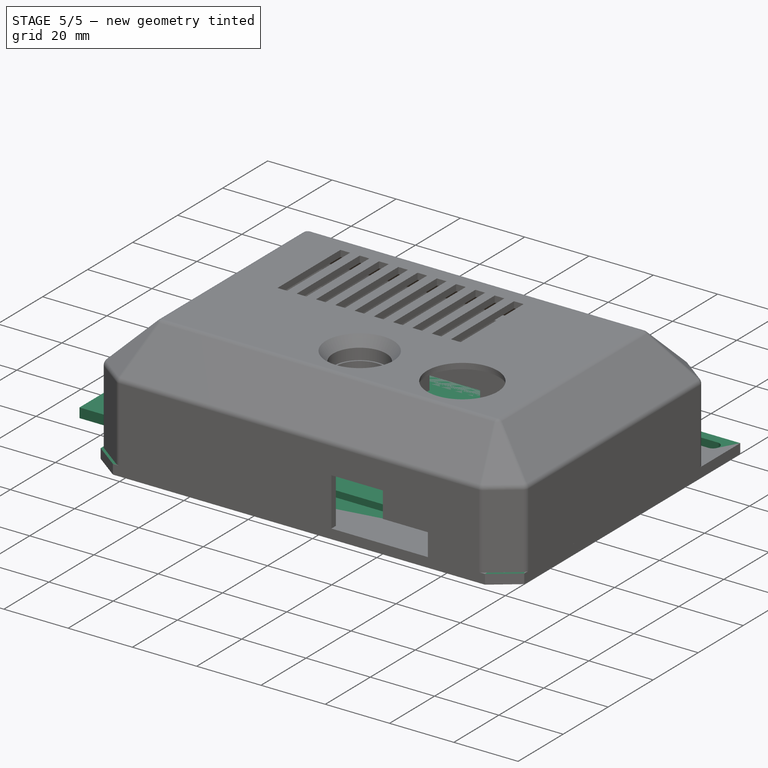
[diagram: stage 5 of 5 — iso view after this stage's code; geometry added in this stage tinted green]
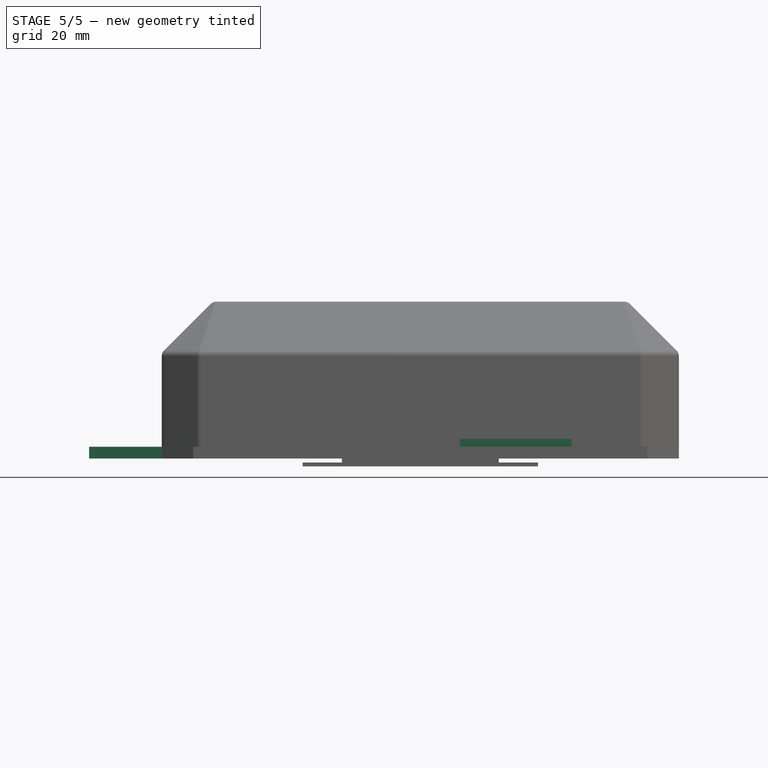
[diagram: stage 5 of 5 — front view after this stage's code; geometry added in this stage tinted green]
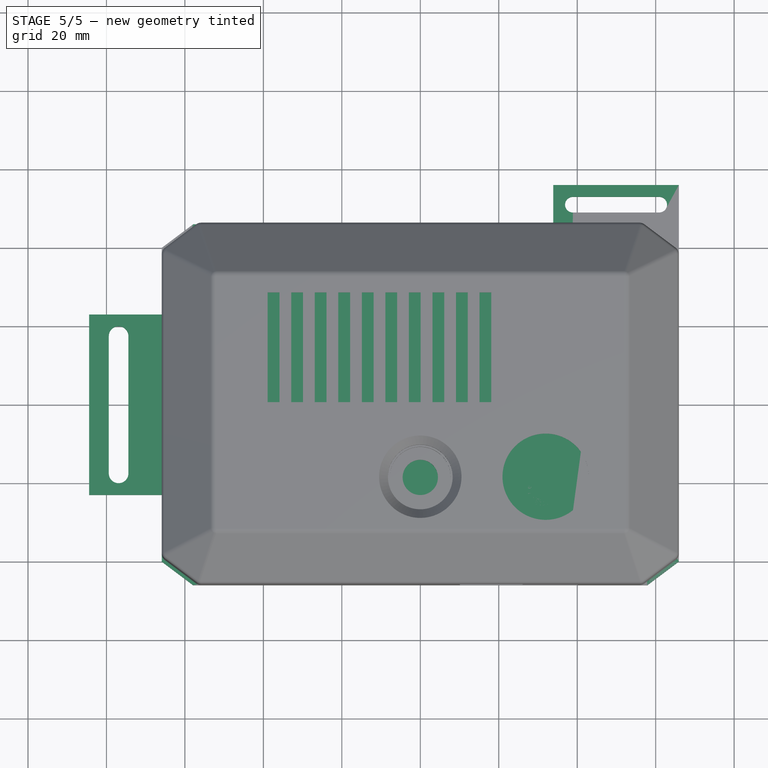
[diagram: stage 5 of 5 — top view after this stage's code; geometry added in this stage tinted green]
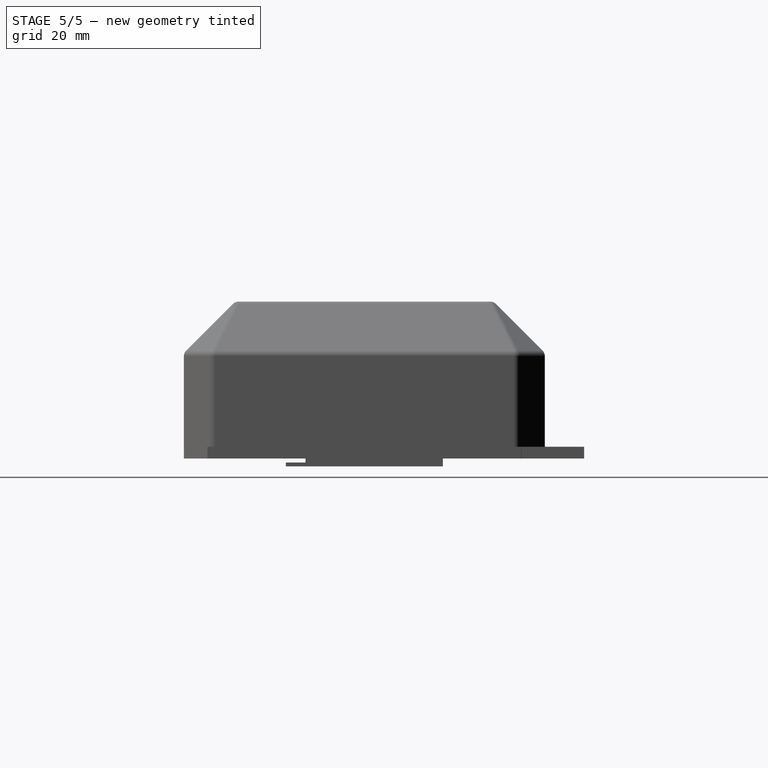
[diagram: stage 5 of 5 — right view after this stage's code; geometry added in this stage tinted green]
FEATURE [Sketcher::SketchObject] Sketch
  MapMode = 5
  Support = -> [XY_Plane]
  sketch-geometry (15):
    g0: LineSegment StartX=-57.9 StartY=46 StartZ=0 EndX=33.9 EndY=46 EndZ=0
    g1: LineSegment StartX=33.9 StartY=46 StartZ=0 EndX=33.9 EndY=56 EndZ=0
    g2: LineSegment StartX=33.9 StartY=56 StartZ=0 EndX=65.9 EndY=56 EndZ=0
    g3: LineSegment StartX=57.9 StartY=-46 StartZ=0 EndX=-57.9 EndY=-46 EndZ=0
    g4: LineSegment StartX=-65.9 StartY=-23 StartZ=0 EndX=-84.4 EndY=-23 EndZ=0
    g5: LineSegment StartX=-84.4 StartY=-23 StartZ=0 EndX=-84.4 EndY=23 EndZ=0
    g6: LineSegment StartX=-84.4 StartY=23 StartZ=0 EndX=-65.9 EndY=23 EndZ=0
    g7: LineSegment StartX=-65.9 StartY=40 StartZ=0 EndX=-57.9 EndY=46 EndZ=0
    g8: LineSegment StartX=-65.9 StartY=23 StartZ=0 EndX=-65.9 EndY=40 EndZ=0
    g9: LineSegment StartX=-65.9 StartY=-23 StartZ=0 EndX=-65.9 EndY=-40 EndZ=0
    g10: LineSegment StartX=-57.9 StartY=-46 StartZ=0 EndX=-65.9 EndY=-40 EndZ=0
    g11: GeomPoint X=65.9 Y=-40 Z=0
    g12: LineSegment StartX=65.9 StartY=56 StartZ=0 EndX=65.9 EndY=-40 EndZ=0
    g13: LineSegment StartX=57.9 StartY=-46 StartZ=0 EndX=65.9 EndY=-40 EndZ=0
    g14: GeomPoint X=33.9 Y=-46 Z=0
  constraints (39):
    c: Horizontal(g0)
    c: Coincident(g0,g1)
    c: Vertical(g1)
    c: Coincident(g1,g2)
    c: Horizontal(g2)
    c: Horizontal(g4)
    c: Coincident(g4,g5)
    c: Coincident(g5,g6)
    c: Horizontal(g6)
    c: DistanceX(g6,g6) = 18.5
    c: DistanceY(g5,g5) = 46
    c: DistanceY(g3,g0) = 92
    c: DistanceY(g3,g2) = 102
    c: Symmetric(g5,g4,g-1)
    c: DistanceX(g2,g2) = 32
    c: DistanceX(g4,g4) = 18.5
    c: Coincident(g7,g0)
    c: Coincident(g8,g6)
    c: Vertical(g8)
    c: Coincident(g7,g8)
    c: DistanceX(g7,g0) = 8
    c: DistanceY(g7,g0) = 6
    c: Coincident(g9,g4)
    c: Vertical(g9)
    c: Coincident(g10,g3)
    c: Coincident(g10,g9)
    c: DistanceX(g9,g3) = 8
    c: DistanceY(g3,g9) = 6
    c: DistanceY(g3,g11) = 6
    c: Symmetric(g11,g9,g-2)
    c: Coincident(g12,g2)
    c: Coincident(g12,g11)
    c: Vertical(g12)
    c: Coincident(g13,g11)
    c: Coincident(g13,g3)
    c: DistanceX(g3,g11) = 8
    c: PointOnObject(g14,g3)
    c: Symmetric(g0,g14,g-1)
    c: DistanceX(g9,g11) = 131.8
FEATURE [PartDesign::Pad] Pad
  Length = 3
  Length2 = 100
  Profile = -> Sketch
  Refine = true
  Type = 0
FEATURE [Sketcher::SketchObject] Sketch027
  ExternalGeometry = -> [Pad]
  MapMode = 5
  Placement = pos=(0,0,3) rot=(0,0,1;0rad)
  Support = -> [Pad]
  sketch-geometry (22):
    g0: LineSegment StartX=43.4 StartY=8.25 StartZ=0 EndX=49.9 EndY=8.25 EndZ=0
    g1: LineSegment StartX=49.9 StartY=8.25 StartZ=0 EndX=49.9 EndY=-8.25 EndZ=0
    g2: LineSegment StartX=49.9 StartY=-8.25 StartZ=0 EndX=43.4 EndY=-8.25 EndZ=0
    g3: LineSegment StartX=43.4 StartY=-8.25 StartZ=0 EndX=43.4 EndY=8.25 EndZ=0
    g4: Circle CenterX=46.65 CenterY=11 CenterZ=0 NormalX=0 NormalY=0 NormalZ=1 AngleXU=0 Radius=1.7
    g5: Circle CenterX=46.65 CenterY=-11 CenterZ=0 NormalX=0 NormalY=0 NormalZ=1 AngleXU=0 Radius=1.7
    g6: LineSegment StartX=58.9 StartY=20 StartZ=0 EndX=62.9 EndY=20 EndZ=0
    g7: LineSegment StartX=62.9 StartY=20 StartZ=0 EndX=62.9 EndY=-20 EndZ=0
    g8: LineSegment StartX=62.9 StartY=-20 StartZ=0 EndX=58.9 EndY=-20 EndZ=0
    g9: LineSegment StartX=58.9 StartY=-20 StartZ=0 EndX=58.9 EndY=20 EndZ=0
    g10: LineSegment StartX=53.9 StartY=20 StartZ=0 EndX=56.9 EndY=20 EndZ=0
    g11: LineSegment StartX=56.9 StartY=20 StartZ=0 EndX=56.9 EndY=-20 EndZ=0
    g12: LineSegment StartX=56.9 StartY=-20 StartZ=0 EndX=53.9 EndY=-20 EndZ=0
    g13: LineSegment StartX=53.9 StartY=-20 StartZ=0 EndX=53.9 EndY=20 EndZ=0
    g14: LineSegment StartX=36.9 StartY=53 StartZ=0 EndX=62.9 EndY=53 EndZ=0
    g15: LineSegment StartX=62.9 StartY=53 StartZ=0 EndX=62.9 EndY=49 EndZ=0
    g16: LineSegment StartX=62.9 StartY=49 StartZ=0 EndX=36.9 EndY=49 EndZ=0
    g17: LineSegment StartX=36.9 StartY=49 StartZ=0 EndX=36.9 EndY=53 EndZ=0
    g18: LineSegment StartX=-79.4 StartY=20 StartZ=0 EndX=-74.4 EndY=20 EndZ=0
    g19: LineSegment StartX=-74.4 StartY=20 StartZ=0 EndX=-74.4 EndY=-20 EndZ=0
    g20: LineSegment StartX=-74.4 StartY=-20 StartZ=0 EndX=-79.4 EndY=-20 EndZ=0
    g21: LineSegment StartX=-79.4 StartY=-20 StartZ=0 EndX=-79.4 EndY=20 EndZ=0
  constraints (61):
    c: Coincident(g0,g1)
    c: Coincident(g1,g2)
    c: Coincident(g2,g3)
    c: Coincident(g3,g0)
    c: Horizontal(g0)
    c: Horizontal(g2)
    c: Vertical(g3)
    c: Symmetric(g0,g1,g-1)
    c: DistanceY(g1,g1) = 16.5
    c: DistanceX(g2,g2) = 6.5
    c: DistanceX(g1,g-3) = 16
    c: Radius(g4) = 1.7
    c: Equal(g4,g5)
    c: Symmetric(g4,g5,g-1)
    c: DistanceY(g-1,g4) = 11
    c: DistanceX(g4,g-3) = 19.25
    c: Coincident(g6,g7)
    c: Coincident(g7,g8)
    c: Coincident(g8,g9)
    c: Coincident(g9,g6)
    c: Horizontal(g6)
    c: Horizontal(g8)
    c: Vertical(g9)
    c: Coincident(g10,g11)
    c: Coincident(g11,g12)
    c: Coincident(g12,g13)
    c: Coincident(g13,g10)
    c: Horizontal(g10)
    c: Horizontal(g12)
    c: Vertical(g13)
    c: Coincident(g14,g15)
    c: Coincident(g15,g16)
    c: Coincident(g16,g17)
    c: Coincident(g17,g14)
    c: Horizontal(g14)
    c: Horizontal(g16)
    c: Vertical(g15)
    c: Vertical(g17)
    c: Coincident(g18,g19)
    c: Coincident(g19,g20)
    c: Coincident(g20,g21)
    c: Coincident(g21,g18)
    c: Horizontal(g18)
    c: Horizontal(g20)
    c: Vertical(g21)
    c: DistanceX(g6,g6) = 4
    c: DistanceX(g10,g10) = 3
    c: DistanceY(g7,g7) = 40
    c: DistanceX(g11,g8) = 2
    c: DistanceX(g7,g-3) = 3
    c: Symmetric(g10,g11,g-1)
    c: Symmetric(g7,g6,g-1)
    c: DistanceX(g14,g14) = 26
    c: DistanceX(g14,g-3) = 3
    c: DistanceY(g17,g17) = 4
    c: DistanceY(g14,g-3) = 3
    c: Equal(g7,g11)
    c: Equal(g11,g19)
    c: Symmetric(g18,g19,g-1)
    c: DistanceX(g18,g18) = 5
    c: DistanceX(g19,g-4) = 8.5
FEATURE [PartDesign::Pocket] Pocket
  BaseFeature = -> Pad
  Length = 3
  Length2 = 100
  Profile = -> Sketch027
  Refine = true
  Type = 0
FEATURE [PartDesign::Fillet] Fillet001
  Base = -> Pocket [Edge85,Edge84,Edge86,Edge87,Edge105,Edge104,Edge103,Edge102,Edge94,Edge95,Edge92,Edge93]
  BaseFeature = -> Pocket
  Radius = 1.9999
FEATURE [PartDesign::Fillet] Fillet002
  Base = -> Fillet001 [Edge95,Edge93,Edge90,Edge91]
  BaseFeature = -> Fillet001
  Radius = 1.4999
FEATURE [PartDesign::Fillet] Fillet003
  Base = -> Fillet002 [Edge117,Edge119,Edge114,Edge115]
  BaseFeature = -> Fillet002
  Radius = 2.4999
FEATURE [PartDesign::Chamfer] Chamfer001
  Base = -> Fillet003 [Edge38,Edge39]
  BaseFeature = -> Fillet003
  Size = 0.5
FEATURE [Sketcher::SketchObject] Sketch028
  ExternalGeometry = -> [Chamfer001]
  MapMode = 5
  Placement = pos=(0,0,3) rot=(0,0,1;0rad)
  Support = -> [Chamfer001]
  sketch-geometry (4):
    g0: LineSegment StartX=-38.5 StartY=20 StartZ=0 EndX=38.5 EndY=20 EndZ=0
    g1: LineSegment StartX=38.5 StartY=20 StartZ=0 EndX=38.5 EndY=-30 EndZ=0
    g2: LineSegment StartX=38.5 StartY=-30 StartZ=0 EndX=-38.5 EndY=-30 EndZ=0
    g3: LineSegment StartX=-38.5 StartY=-30 StartZ=0 EndX=-38.5 EndY=20 EndZ=0
  constraints (12):
    c: Coincident(g0,g1)
    c: Coincident(g1,g2)
    c: Coincident(g2,g3)
    c: Coincident(g3,g0)
    c: Horizontal(g2)
    c: Vertical(g1)
    c: Vertical(g3)
    c: DistanceX(g0,g0) = 77
    c: DistanceY(g3,g3) = 50
    c: DistanceY(g-1,g0) = 20
    c: Symmetric(g0,g0,g-2)
    c: DistanceX(g0,g-3) = 4.9
FEATURE [PartDesign::Pad] Pad001
  BaseFeature = -> Chamfer001
  Length = 2
  Length2 = 100
  Profile = -> Sketch028
  Refine = true
  Type = 0
FEATURE [Sketcher::SketchObject] Sketch031
  ExternalGeometry = -> [Pocket001]
  MapMode = 5
  Placement = pos=(-31,0,0) rot=(0.57735,-0.57735,-0.57735;2.0944rad)
  Support = -> [Pocket001]
  sketch-geometry (4):
    g0: LineSegment StartX=-20 StartY=2 StartZ=0 EndX=20 EndY=2 EndZ=0
    g1: LineSegment StartX=20 StartY=2 StartZ=0 EndX=20 EndY=1 EndZ=0
    g2: LineSegment StartX=20 StartY=1 StartZ=0 EndX=-20 EndY=1 EndZ=0
    g3: LineSegment StartX=-20 StartY=1 StartZ=0 EndX=-20 EndY=2 EndZ=0
  constraints (11):
    c: Coincident(g0,g1)
    c: Coincident(g1,g2)
    c: Coincident(g2,g3)
    c: Coincident(g3,g0)
    c: Horizontal(g0)
    c: Horizontal(g2)
    c: Vertical(g1)
    c: Vertical(g3)
    c: Coincident(g0,g-4)
    c: DistanceY(g3,g3) = 1
    c: PointOnObject(g1,g-3)
FEATURE [PartDesign::Pocket] Pocket002
  BaseFeature = -> Pocket001
  Length = 9.5
  Length2 = 100
  Profile = -> Sketch031
  Refine = true
  Type = 0
FEATURE [Sketcher::SketchObject] Sketch032
  ExternalGeometry = -> [Pocket002]
  MapMode = 5
  Placement = pos=(0,-20,0) rot=(1,0,0;1.5708rad)
  Support = -> [Pocket002]
  sketch-geometry (4):
    g0: LineSegment StartX=-21.5 StartY=1 StartZ=0 EndX=21.5 EndY=1 EndZ=0
    g1: LineSegment StartX=21.5 StartY=1 StartZ=0 EndX=21.5 EndY=2 EndZ=0
    g2: LineSegment StartX=21.5 StartY=2 StartZ=0 EndX=-21.5 EndY=2 EndZ=0
    g3: LineSegment StartX=-21.5 StartY=2 StartZ=0 EndX=-21.5 EndY=1 EndZ=0
  constraints (10):
    c: Coincident(g0,g1)
    c: Coincident(g1,g2)
    c: Coincident(g2,g3)
    c: Coincident(g3,g0)
    c: Horizontal(g0)
    c: Horizontal(g2)
    c: Vertical(g1)
    c: Vertical(g3)
    c: Coincident(g0,g-3)
    c: Coincident(g1,g-4)
FEATURE [PartDesign::Pocket] Pocket003
  BaseFeature = -> Pocket002
  Length = 5
  Length2 = 100
  Profile = -> Sketch032
  Refine = true
  Type = 0
FEATURE [PartDesign::Body] Body002
  Group = -> [Sketch029,Pad002,Sketch030,Pocket001,Sketch031,Pocket002,Sketch032,Pocket003]
  Origin = -> Origin002
  Placement = pos=(0,0,3) rot=(0,0,1;0rad)
  Tip = -> Pocket003
FEATURE [PartDesign::Boolean] Boolean
  BaseFeature = -> Pad001
  Group = -> [Body002]
  Refine = true
  Type = 1
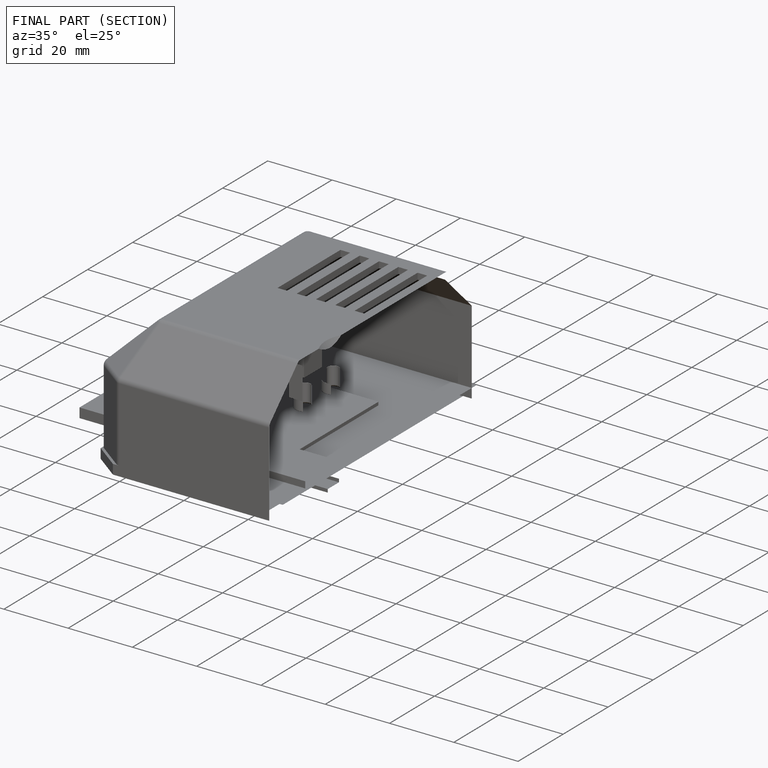
[diagram: finished part — half-section view (interior)]
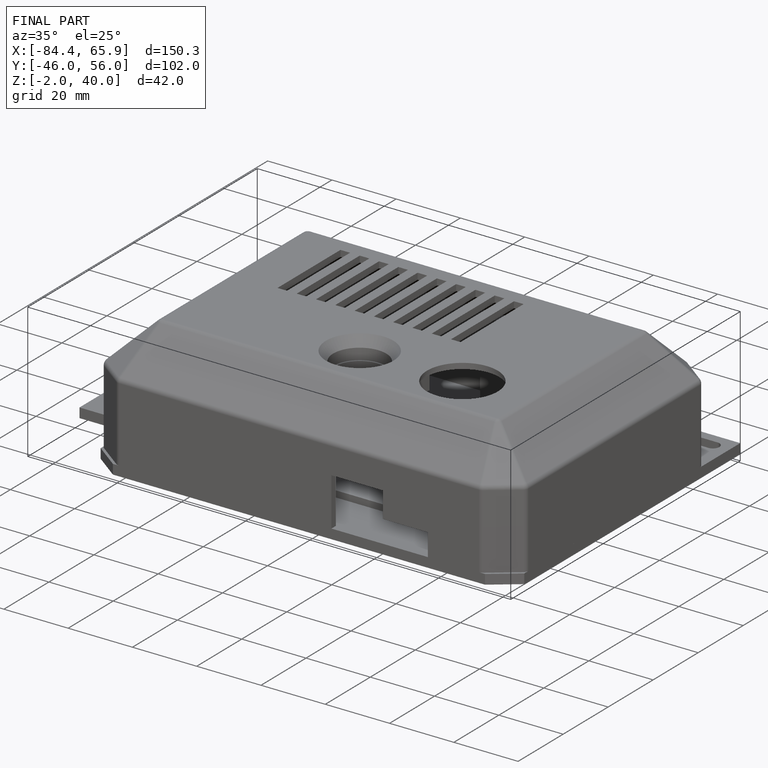
[diagram: finished part — iso view with bounding-box wireframe]
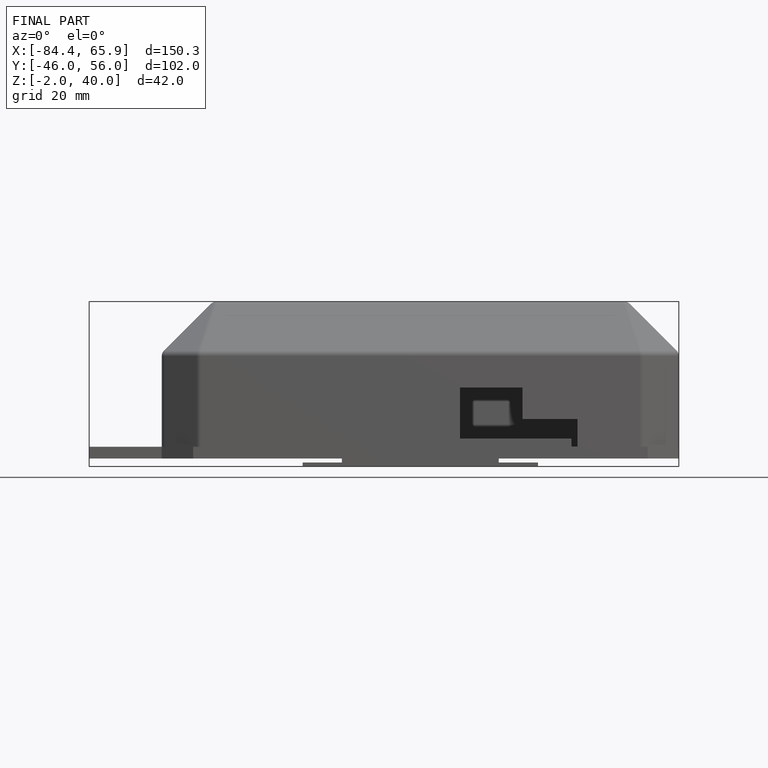
[diagram: finished part — front view with bounding-box wireframe]
